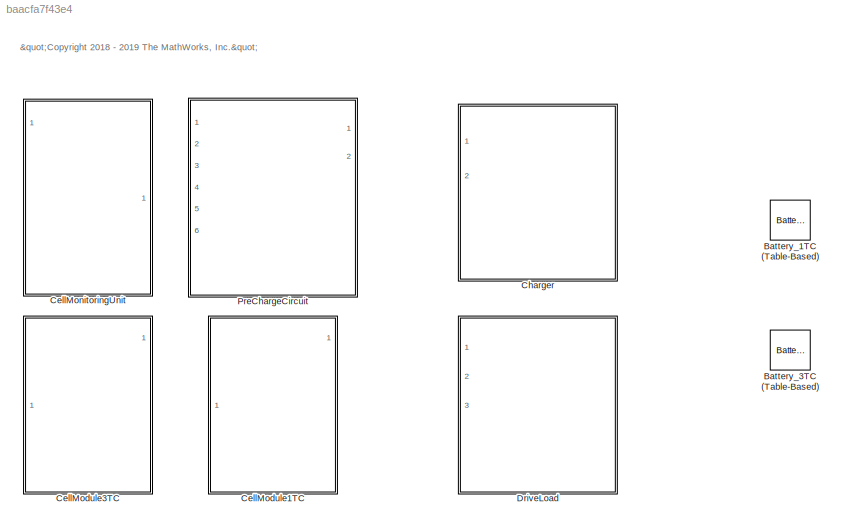
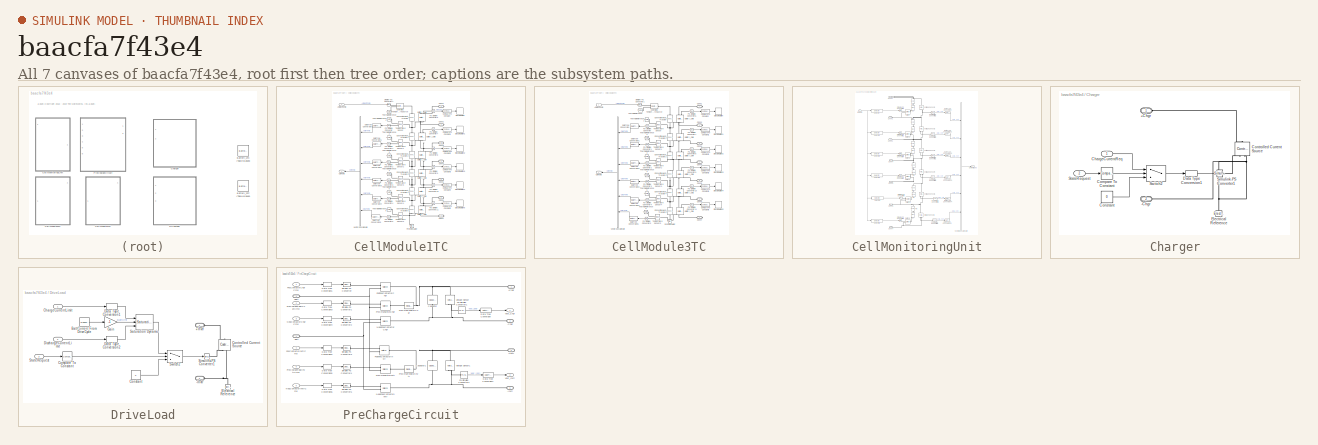
[diagram: thumbnail index - all 7 canvases of the model, root first then tree order]
MODEL slx_baacfa7f43e4
KIND library
CONFIG AbsTol = auto
CONFIG EnableMultiTasking = off
CONFIG FixedStep = auto
CONFIG MaxStep = auto
CONFIG MinStep = auto
CONFIG RelTol = 1e-3
CONFIG SampleTimeConstraint = Unconstrained
CONFIG SolverName = VariableStepAuto
CONFIG StartTime = 0.0
CONFIG StopTime = 10.0
BLOCK [Reference] Battery_1TC (Table-Based)  REF=ee_lib/Sources/Battery
(Table-Based)
  NameLocation = right
  Ports = [0, 0, 0, 0, 0, 2, 2]
  SourceBlock = ee_lib/Sources/Battery\n(Table-Based)
  SourceProductBaseCode = PS
  SourceType = Battery\n(Table-Based)
BLOCK [Reference] Battery_3TC (Table-Based)  REF=ee_lib/Sources/Battery
(Table-Based)
  NameLocation = right
  Ports = [0, 0, 0, 0, 0, 2, 2]
  SourceBlock = ee_lib/Sources/Battery\n(Table-Based)
  SourceProductBaseCode = PS
  SourceType = Battery\n(Table-Based)
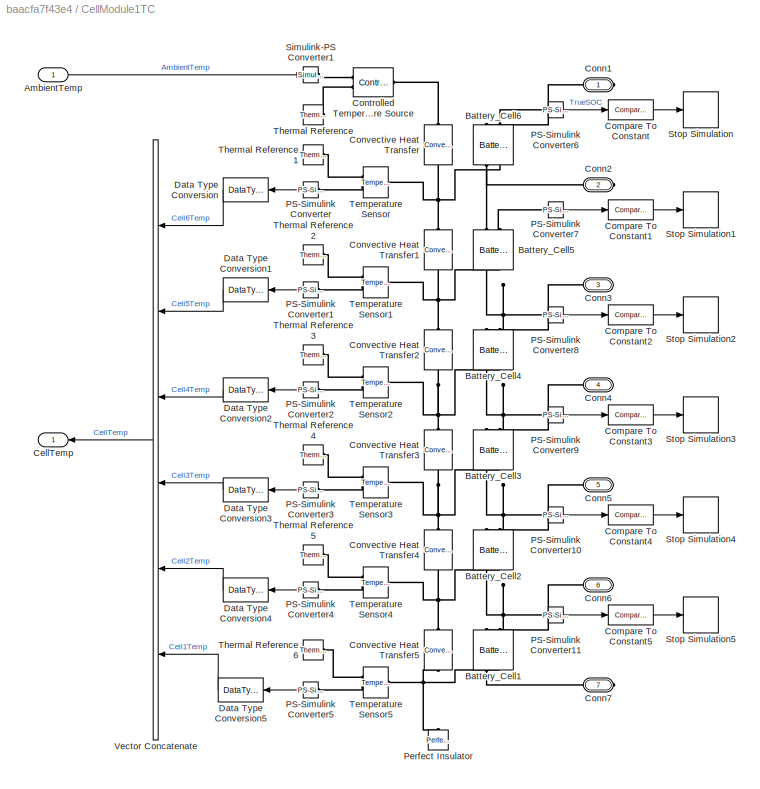
BLOCK [SubSystem] CellModule1TC
  Ports = [1, 1, 0, 0, 0, 0, 7]
  RequestExecContextInheritance = off
BLOCK [Inport] CellModule1TC/AmbientTemp
BLOCK [Reference] CellModule1TC/Battery_Cell1  REF=ee_lib/Sources/Battery
(Table-Based)
  NameLocation = left
  Ports = [0, 0, 0, 0, 0, 2, 2]
  SourceBlock = ee_lib/Sources/Battery\n(Table-Based)
  SourceProductBaseCode = PS
  SourceType = Battery\n(Table-Based)
BLOCK [Reference] CellModule1TC/Battery_Cell2  REF=ee_lib/Sources/Battery
(Table-Based)
  NameLocation = left
  Ports = [0, 0, 0, 0, 0, 2, 2]
  SourceBlock = ee_lib/Sources/Battery\n(Table-Based)
  SourceProductBaseCode = PS
  SourceType = Battery\n(Table-Based)
BLOCK [Reference] CellModule1TC/Battery_Cell3  REF=ee_lib/Sources/Battery
(Table-Based)
  NameLocation = left
  Ports = [0, 0, 0, 0, 0, 2, 2]
  SourceBlock = ee_lib/Sources/Battery\n(Table-Based)
  SourceProductBaseCode = PS
  SourceType = Battery\n(Table-Based)
BLOCK [Reference] CellModule1TC/Battery_Cell4  REF=ee_lib/Sources/Battery
(Table-Based)
  NameLocation = left
  Ports = [0, 0, 0, 0, 0, 2, 2]
  SourceBlock = ee_lib/Sources/Battery\n(Table-Based)
  SourceProductBaseCode = PS
  SourceType = Battery\n(Table-Based)
BLOCK [Reference] CellModule1TC/Battery_Cell5  REF=ee_lib/Sources/Battery
(Table-Based)
  NameLocation = left
  Ports = [0, 0, 0, 0, 0, 2, 2]
  SourceBlock = ee_lib/Sources/Battery\n(Table-Based)
  SourceProductBaseCode = PS
  SourceType = Battery\n(Table-Based)
BLOCK [Reference] CellModule1TC/Battery_Cell6  REF=ee_lib/Sources/Battery
(Table-Based)
  NameLocation = left
  Ports = [0, 0, 0, 0, 0, 2, 2]
  SourceBlock = ee_lib/Sources/Battery\n(Table-Based)
  SourceProductBaseCode = PS
  SourceType = Battery\n(Table-Based)
BLOCK [Outport] CellModule1TC/CellTemp
  VectorParamsAs1DForOutWhenUnconnected = off
BLOCK [Reference] CellModule1TC/Compare To Constant  REF=simulink/Logic and Bit
Operations/Compare
To Constant
  Ports = [1, 1]
  SourceBlock = simulink/Logic and Bit\nOperations/Compare\nTo Constant
  SourceProductBaseCode = SL
  SourceType = Compare To Constant
BLOCK [Reference] CellModule1TC/Compare To Constant1  REF=simulink/Logic and Bit
Operations/Compare
To Constant
  Ports = [1, 1]
  SourceBlock = simulink/Logic and Bit\nOperations/Compare\nTo Constant
  SourceProductBaseCode = SL
  SourceType = Compare To Constant
BLOCK [Reference] CellModule1TC/Compare To Constant2  REF=simulink/Logic and Bit
Operations/Compare
To Constant
  Ports = [1, 1]
  SourceBlock = simulink/Logic and Bit\nOperations/Compare\nTo Constant
  SourceProductBaseCode = SL
  SourceType = Compare To Constant
BLOCK [Reference] CellModule1TC/Compare To Constant3  REF=simulink/Logic and Bit
Operations/Compare
To Constant
  Ports = [1, 1]
  SourceBlock = simulink/Logic and Bit\nOperations/Compare\nTo Constant
  SourceProductBaseCode = SL
  SourceType = Compare To Constant
BLOCK [Reference] CellModule1TC/Compare To Constant4  REF=simulink/Logic and Bit
Operations/Compare
To Constant
  Ports = [1, 1]
  SourceBlock = simulink/Logic and Bit\nOperations/Compare\nTo Constant
  SourceProductBaseCode = SL
  SourceType = Compare To Constant
BLOCK [Reference] CellModule1TC/Compare To Constant5  REF=simulink/Logic and Bit
Operations/Compare
To Constant
  Ports = [1, 1]
  SourceBlock = simulink/Logic and Bit\nOperations/Compare\nTo Constant
  SourceProductBaseCode = SL
  SourceType = Compare To Constant
BLOCK [PMIOPort] CellModule1TC/Conn1
  NameLocation = top
  Side = Right
BLOCK [PMIOPort] CellModule1TC/Conn2
  NameLocation = top
  Port = 2
  Side = Right
BLOCK [PMIOPort] CellModule1TC/Conn3
  NameLocation = top
  Port = 3
  Side = Right
BLOCK [PMIOPort] CellModule1TC/Conn4
  NameLocation = top
  Port = 4
  Side = Right
BLOCK [PMIOPort] CellModule1TC/Conn5
  NameLocation = top
  Port = 5
  Side = Right
BLOCK [PMIOPort] CellModule1TC/Conn6
  NameLocation = top
  Port = 6
  Side = Right
BLOCK [PMIOPort] CellModule1TC/Conn7
  NameLocation = top
  Port = 7
  Side = Right
BLOCK [Reference] CellModule1TC/Controlled Temperature Source  REF=fl_lib/Thermal/Thermal Sources/Controlled
Temperature Source
  Ports = [0, 0, 0, 0, 0, 1, 2]
  SourceBlock = fl_lib/Thermal/Thermal Sources/Controlled\nTemperature Source
  SourceProductBaseCode = SS
  SourceType = Controlled\nTemperature Source
BLOCK [Reference] CellModule1TC/Convective Heat Transfer  REF=fl_lib/Thermal/Thermal Elements/Convective Heat
Transfer
  NameLocation = left
  Ports = [0, 0, 0, 0, 0, 1, 1]
  SourceBlock = fl_lib/Thermal/Thermal Elements/Convective Heat\nTransfer
  SourceProductBaseCode = SS
  SourceType = Convective Heat\nTransfer
BLOCK [Reference] CellModule1TC/Convective Heat Transfer1  REF=fl_lib/Thermal/Thermal Elements/Convective Heat
Transfer
  NameLocation = left
  Ports = [0, 0, 0, 0, 0, 1, 1]
  SourceBlock = fl_lib/Thermal/Thermal Elements/Convective Heat\nTransfer
  SourceProductBaseCode = SS
  SourceType = Convective Heat\nTransfer
BLOCK [Reference] CellModule1TC/Convective Heat Transfer2  REF=fl_lib/Thermal/Thermal Elements/Convective Heat
Transfer
  NameLocation = left
  Ports = [0, 0, 0, 0, 0, 1, 1]
  SourceBlock = fl_lib/Thermal/Thermal Elements/Convective Heat\nTransfer
  SourceProductBaseCode = SS
  SourceType = Convective Heat\nTransfer
BLOCK [Reference] CellModule1TC/Convective Heat Transfer3  REF=fl_lib/Thermal/Thermal Elements/Convective Heat
Transfer
  NameLocation = left
  Ports = [0, 0, 0, 0, 0, 1, 1]
  SourceBlock = fl_lib/Thermal/Thermal Elements/Convective Heat\nTransfer
  SourceProductBaseCode = SS
  SourceType = Convective Heat\nTransfer
BLOCK [Reference] CellModule1TC/Convective Heat Transfer4  REF=fl_lib/Thermal/Thermal Elements/Convective Heat
Transfer
  NameLocation = left
  Ports = [0, 0, 0, 0, 0, 1, 1]
  SourceBlock = fl_lib/Thermal/Thermal Elements/Convective Heat\nTransfer
  SourceProductBaseCode = SS
  SourceType = Convective Heat\nTransfer
BLOCK [Reference] CellModule1TC/Convective Heat Transfer5  REF=fl_lib/Thermal/Thermal Elements/Convective Heat
Transfer
  NameLocation = left
  Ports = [0, 0, 0, 0, 0, 1, 1]
  SourceBlock = fl_lib/Thermal/Thermal Elements/Convective Heat\nTransfer
  SourceProductBaseCode = SS
  SourceType = Convective Heat\nTransfer
BLOCK [DataTypeConversion] CellModule1TC/Data Type Conversion
  OutDataTypeStr = single
  RndMeth = Floor
  SaturateOnIntegerOverflow = off
BLOCK [DataTypeConversion] CellModule1TC/Data Type Conversion1
  OutDataTypeStr = single
  RndMeth = Floor
  SaturateOnIntegerOverflow = off
BLOCK [DataTypeConversion] CellModule1TC/Data Type Conversion2
  OutDataTypeStr = single
  RndMeth = Floor
  SaturateOnIntegerOverflow = off
BLOCK [DataTypeConversion] CellModule1TC/Data Type Conversion3
  OutDataTypeStr = single
  RndMeth = Floor
  SaturateOnIntegerOverflow = off
BLOCK [DataTypeConversion] CellModule1TC/Data Type Conversion4
  OutDataTypeStr = single
  RndMeth = Floor
  SaturateOnIntegerOverflow = off
BLOCK [DataTypeConversion] CellModule1TC/Data Type Conversion5
  OutDataTypeStr = single
  RndMeth = Floor
  SaturateOnIntegerOverflow = off
BLOCK [Reference] CellModule1TC/PS-Simulink Converter  REF=nesl_utility/PS-Simulink
Converter
  Ports = [0, 1, 0, 0, 0, 1]
  SourceBlock = nesl_utility/PS-Simulink\nConverter
  SourceProductBaseCode = SS
  SourceType = PS-Simulink\nConverter
BLOCK [Reference] CellModule1TC/PS-Simulink Converter1  REF=nesl_utility/PS-Simulink
Converter
  Ports = [0, 1, 0, 0, 0, 1]
  SourceBlock = nesl_utility/PS-Simulink\nConverter
  SourceProductBaseCode = SS
  SourceType = PS-Simulink\nConverter
BLOCK [Reference] CellModule1TC/PS-Simulink Converter10  REF=nesl_utility/PS-Simulink
Converter
  Ports = [0, 1, 0, 0, 0, 1]
  SourceBlock = nesl_utility/PS-Simulink\nConverter
  SourceProductBaseCode = SS
  SourceType = PS-Simulink\nConverter
BLOCK [Reference] CellModule1TC/PS-Simulink Converter11  REF=nesl_utility/PS-Simulink
Converter
  Ports = [0, 1, 0, 0, 0, 1]
  SourceBlock = nesl_utility/PS-Simulink\nConverter
  SourceProductBaseCode = SS
  SourceType = PS-Simulink\nConverter
BLOCK [Reference] CellModule1TC/PS-Simulink Converter2  REF=nesl_utility/PS-Simulink
Converter
  Ports = [0, 1, 0, 0, 0, 1]
  SourceBlock = nesl_utility/PS-Simulink\nConverter
  SourceProductBaseCode = SS
  SourceType = PS-Simulink\nConverter
BLOCK [Reference] CellModule1TC/PS-Simulink Converter3  REF=nesl_utility/PS-Simulink
Converter
  Ports = [0, 1, 0, 0, 0, 1]
  SourceBlock = nesl_utility/PS-Simulink\nConverter
  SourceProductBaseCode = SS
  SourceType = PS-Simulink\nConverter
BLOCK [Reference] CellModule1TC/PS-Simulink Converter4  REF=nesl_utility/PS-Simulink
Converter
  Ports = [0, 1, 0, 0, 0, 1]
  SourceBlock = nesl_utility/PS-Simulink\nConverter
  SourceProductBaseCode = SS
  SourceType = PS-Simulink\nConverter
BLOCK [Reference] CellModule1TC/PS-Simulink Converter5  REF=nesl_utility/PS-Simulink
Converter
  Ports = [0, 1, 0, 0, 0, 1]
  SourceBlock = nesl_utility/PS-Simulink\nConverter
  SourceProductBaseCode = SS
  SourceType = PS-Simulink\nConverter
BLOCK [Reference] CellModule1TC/PS-Simulink Converter6  REF=nesl_utility/PS-Simulink
Converter
  Ports = [0, 1, 0, 0, 0, 1]
  SourceBlock = nesl_utility/PS-Simulink\nConverter
  SourceProductBaseCode = SS
  SourceType = PS-Simulink\nConverter
BLOCK [Reference] CellModule1TC/PS-Simulink Converter7  REF=nesl_utility/PS-Simulink
Converter
  Ports = [0, 1, 0, 0, 0, 1]
  SourceBlock = nesl_utility/PS-Simulink\nConverter
  SourceProductBaseCode = SS
  SourceType = PS-Simulink\nConverter
BLOCK [Reference] CellModule1TC/PS-Simulink Converter8  REF=nesl_utility/PS-Simulink
Converter
  Ports = [0, 1, 0, 0, 0, 1]
  SourceBlock = nesl_utility/PS-Simulink\nConverter
  SourceProductBaseCode = SS
  SourceType = PS-Simulink\nConverter
BLOCK [Reference] CellModule1TC/PS-Simulink Converter9  REF=nesl_utility/PS-Simulink
Converter
  Ports = [0, 1, 0, 0, 0, 1]
  SourceBlock = nesl_utility/PS-Simulink\nConverter
  SourceProductBaseCode = SS
  SourceType = PS-Simulink\nConverter
BLOCK [Reference] CellModule1TC/Perfect Insulator  REF=fl_lib/Thermal/Thermal Elements/Perfect Insulator
  NameLocation = right
  Ports = [0, 0, 0, 0, 0, 1]
  SourceBlock = fl_lib/Thermal/Thermal Elements/Perfect Insulator
  SourceProductBaseCode = SS
  SourceType = Perfect Insulator
BLOCK [Reference] CellModule1TC/Simulink-PS Converter1  REF=nesl_utility/Simulink-PS
Converter
  Ports = [1, 0, 0, 0, 0, 0, 1]
  SourceBlock = nesl_utility/Simulink-PS\nConverter
  SourceProductBaseCode = SS
  SourceType = Simulink-PS\nConverter
BLOCK [Stop] CellModule1TC/Stop Simulation
BLOCK [Stop] CellModule1TC/Stop Simulation1
BLOCK [Stop] CellModule1TC/Stop Simulation2
BLOCK [Stop] CellModule1TC/Stop Simulation3
BLOCK [Stop] CellModule1TC/Stop Simulation4
BLOCK [Stop] CellModule1TC/Stop Simulation5
BLOCK [Reference] CellModule1TC/Temperature Sensor  REF=fl_lib/Thermal/Thermal Sensors/Temperature Sensor
  Ports = [0, 0, 0, 0, 0, 1, 2]
  SourceBlock = fl_lib/Thermal/Thermal Sensors/Temperature Sensor
  SourceProductBaseCode = SS
  SourceType = Temperature Sensor
BLOCK [Reference] CellModule1TC/Temperature Sensor1  REF=fl_lib/Thermal/Thermal Sensors/Temperature Sensor
  Ports = [0, 0, 0, 0, 0, 1, 2]
  SourceBlock = fl_lib/Thermal/Thermal Sensors/Temperature Sensor
  SourceProductBaseCode = SS
  SourceType = Temperature Sensor
BLOCK [Reference] CellModule1TC/Temperature Sensor2  REF=fl_lib/Thermal/Thermal Sensors/Temperature Sensor
  Ports = [0, 0, 0, 0, 0, 1, 2]
  SourceBlock = fl_lib/Thermal/Thermal Sensors/Temperature Sensor
  SourceProductBaseCode = SS
  SourceType = Temperature Sensor
BLOCK [Reference] CellModule1TC/Temperature Sensor3  REF=fl_lib/Thermal/Thermal Sensors/Temperature Sensor
  Ports = [0, 0, 0, 0, 0, 1, 2]
  SourceBlock = fl_lib/Thermal/Thermal Sensors/Temperature Sensor
  SourceProductBaseCode = SS
  SourceType = Temperature Sensor
BLOCK [Reference] CellModule1TC/Temperature Sensor4  REF=fl_lib/Thermal/Thermal Sensors/Temperature Sensor
  Ports = [0, 0, 0, 0, 0, 1, 2]
  SourceBlock = fl_lib/Thermal/Thermal Sensors/Temperature Sensor
  SourceProductBaseCode = SS
  SourceType = Temperature Sensor
BLOCK [Reference] CellModule1TC/Temperature Sensor5  REF=fl_lib/Thermal/Thermal Sensors/Temperature Sensor
  Ports = [0, 0, 0, 0, 0, 1, 2]
  SourceBlock = fl_lib/Thermal/Thermal Sensors/Temperature Sensor
  SourceProductBaseCode = SS
  SourceType = Temperature Sensor
BLOCK [Reference] CellModule1TC/Thermal Reference  REF=fl_lib/Thermal/Thermal Elements/Thermal Reference
  Ports = [0, 0, 0, 0, 0, 1]
  SourceBlock = fl_lib/Thermal/Thermal Elements/Thermal Reference
  SourceProductBaseCode = SS
  SourceType = Thermal Reference
BLOCK [Reference] CellModule1TC/Thermal Reference1  REF=fl_lib/Thermal/Thermal Elements/Thermal Reference
  Ports = [0, 0, 0, 0, 0, 1]
  SourceBlock = fl_lib/Thermal/Thermal Elements/Thermal Reference
  SourceProductBaseCode = SS
  SourceType = Thermal Reference
BLOCK [Reference] CellModule1TC/Thermal Reference2  REF=fl_lib/Thermal/Thermal Elements/Thermal Reference
  Ports = [0, 0, 0, 0, 0, 1]
  SourceBlock = fl_lib/Thermal/Thermal Elements/Thermal Reference
  SourceProductBaseCode = SS
  SourceType = Thermal Reference
BLOCK [Reference] CellModule1TC/Thermal Reference3  REF=fl_lib/Thermal/Thermal Elements/Thermal Reference
  Ports = [0, 0, 0, 0, 0, 1]
  SourceBlock = fl_lib/Thermal/Thermal Elements/Thermal Reference
  SourceProductBaseCode = SS
  SourceType = Thermal Reference
BLOCK [Reference] CellModule1TC/Thermal Reference4  REF=fl_lib/Thermal/Thermal Elements/Thermal Reference
  Ports = [0, 0, 0, 0, 0, 1]
  SourceBlock = fl_lib/Thermal/Thermal Elements/Thermal Reference
  SourceProductBaseCode = SS
  SourceType = Thermal Reference
BLOCK [Reference] CellModule1TC/Thermal Reference5  REF=fl_lib/Thermal/Thermal Elements/Thermal Reference
  Ports = [0, 0, 0, 0, 0, 1]
  SourceBlock = fl_lib/Thermal/Thermal Elements/Thermal Reference
  SourceProductBaseCode = SS
  SourceType = Thermal Reference
BLOCK [Reference] CellModule1TC/Thermal Reference6  REF=fl_lib/Thermal/Thermal Elements/Thermal Reference
  Ports = [0, 0, 0, 0, 0, 1]
  SourceBlock = fl_lib/Thermal/Thermal Elements/Thermal Reference
  SourceProductBaseCode = SS
  SourceType = Thermal Reference
BLOCK [Concatenate] CellModule1TC/Vector Concatenate
  NumInputs = 6
  Ports = [6, 1]
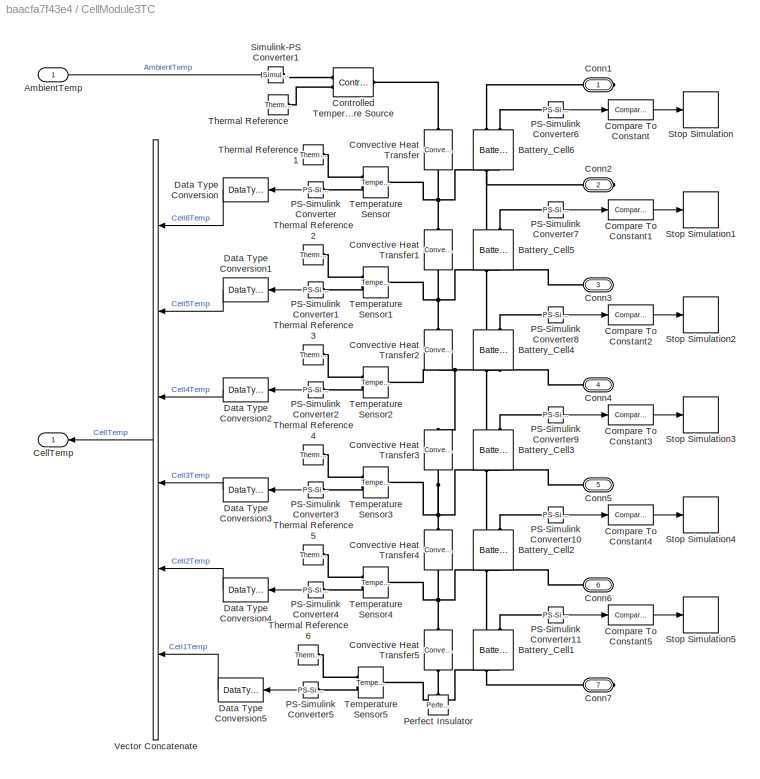
BLOCK [SubSystem] CellModule3TC
  Ports = [1, 1, 0, 0, 0, 0, 7]
  RequestExecContextInheritance = off
BLOCK [Inport] CellModule3TC/AmbientTemp
BLOCK [Reference] CellModule3TC/Battery_Cell1  REF=ee_lib/Sources/Battery
(Table-Based)
  NameLocation = right
  Ports = [0, 0, 0, 0, 0, 2, 2]
  SourceBlock = ee_lib/Sources/Battery\n(Table-Based)
  SourceProductBaseCode = PS
  SourceType = Battery\n(Table-Based)
BLOCK [Reference] CellModule3TC/Battery_Cell2  REF=ee_lib/Sources/Battery
(Table-Based)
  NameLocation = right
  Ports = [0, 0, 0, 0, 0, 2, 2]
  SourceBlock = ee_lib/Sources/Battery\n(Table-Based)
  SourceProductBaseCode = PS
  SourceType = Battery\n(Table-Based)
BLOCK [Reference] CellModule3TC/Battery_Cell3  REF=ee_lib/Sources/Battery
(Table-Based)
  NameLocation = right
  Ports = [0, 0, 0, 0, 0, 2, 2]
  SourceBlock = ee_lib/Sources/Battery\n(Table-Based)
  SourceProductBaseCode = PS
  SourceType = Battery\n(Table-Based)
BLOCK [Reference] CellModule3TC/Battery_Cell4  REF=ee_lib/Sources/Battery
(Table-Based)
  NameLocation = right
  Ports = [0, 0, 0, 0, 0, 2, 2]
  SourceBlock = ee_lib/Sources/Battery\n(Table-Based)
  SourceProductBaseCode = PS
  SourceType = Battery\n(Table-Based)
BLOCK [Reference] CellModule3TC/Battery_Cell5  REF=ee_lib/Sources/Battery
(Table-Based)
  NameLocation = right
  Ports = [0, 0, 0, 0, 0, 2, 2]
  SourceBlock = ee_lib/Sources/Battery\n(Table-Based)
  SourceProductBaseCode = PS
  SourceType = Battery\n(Table-Based)
BLOCK [Reference] CellModule3TC/Battery_Cell6  REF=ee_lib/Sources/Battery
(Table-Based)
  NameLocation = right
  Ports = [0, 0, 0, 0, 0, 2, 2]
  SourceBlock = ee_lib/Sources/Battery\n(Table-Based)
  SourceProductBaseCode = PS
  SourceType = Battery\n(Table-Based)
BLOCK [Outport] CellModule3TC/CellTemp
  VectorParamsAs1DForOutWhenUnconnected = off
BLOCK [Reference] CellModule3TC/Compare To Constant  REF=simulink/Logic and Bit
Operations/Compare
To Constant
  Ports = [1, 1]
  SourceBlock = simulink/Logic and Bit\nOperations/Compare\nTo Constant
  SourceProductBaseCode = SL
  SourceType = Compare To Constant
BLOCK [Reference] CellModule3TC/Compare To Constant1  REF=simulink/Logic and Bit
Operations/Compare
To Constant
  Ports = [1, 1]
  SourceBlock = simulink/Logic and Bit\nOperations/Compare\nTo Constant
  SourceProductBaseCode = SL
  SourceType = Compare To Constant
BLOCK [Reference] CellModule3TC/Compare To Constant2  REF=simulink/Logic and Bit
Operations/Compare
To Constant
  Ports = [1, 1]
  SourceBlock = simulink/Logic and Bit\nOperations/Compare\nTo Constant
  SourceProductBaseCode = SL
  SourceType = Compare To Constant
BLOCK [Reference] CellModule3TC/Compare To Constant3  REF=simulink/Logic and Bit
Operations/Compare
To Constant
  Ports = [1, 1]
  SourceBlock = simulink/Logic and Bit\nOperations/Compare\nTo Constant
  SourceProductBaseCode = SL
  SourceType = Compare To Constant
BLOCK [Reference] CellModule3TC/Compare To Constant4  REF=simulink/Logic and Bit
Operations/Compare
To Constant
  Ports = [1, 1]
  SourceBlock = simulink/Logic and Bit\nOperations/Compare\nTo Constant
  SourceProductBaseCode = SL
  SourceType = Compare To Constant
BLOCK [Reference] CellModule3TC/Compare To Constant5  REF=simulink/Logic and Bit
Operations/Compare
To Constant
  Ports = [1, 1]
  SourceBlock = simulink/Logic and Bit\nOperations/Compare\nTo Constant
  SourceProductBaseCode = SL
  SourceType = Compare To Constant
BLOCK [PMIOPort] CellModule3TC/Conn1
  NameLocation = top
  Side = Right
BLOCK [PMIOPort] CellModule3TC/Conn2
  NameLocation = top
  Port = 2
  Side = Right
BLOCK [PMIOPort] CellModule3TC/Conn3
  NameLocation = top
  Port = 3
  Side = Right
BLOCK [PMIOPort] CellModule3TC/Conn4
  NameLocation = top
  Port = 4
  Side = Right
BLOCK [PMIOPort] CellModule3TC/Conn5
  NameLocation = top
  Port = 5
  Side = Right
BLOCK [PMIOPort] CellModule3TC/Conn6
  NameLocation = top
  Port = 6
  Side = Right
BLOCK [PMIOPort] CellModule3TC/Conn7
  NameLocation = top
  Port = 7
  Side = Right
BLOCK [Reference] CellModule3TC/Controlled Temperature Source  REF=fl_lib/Thermal/Thermal Sources/Controlled
Temperature Source
  Ports = [0, 0, 0, 0, 0, 1, 2]
  SourceBlock = fl_lib/Thermal/Thermal Sources/Controlled\nTemperature Source
  SourceProductBaseCode = SS
  SourceType = Controlled\nTemperature Source
BLOCK [Reference] CellModule3TC/Convective Heat Transfer  REF=fl_lib/Thermal/Thermal Elements/Convective Heat
Transfer
  NameLocation = left
  Ports = [0, 0, 0, 0, 0, 1, 1]
  SourceBlock = fl_lib/Thermal/Thermal Elements/Convective Heat\nTransfer
  SourceProductBaseCode = SS
  SourceType = Convective Heat\nTransfer
BLOCK [Reference] CellModule3TC/Convective Heat Transfer1  REF=fl_lib/Thermal/Thermal Elements/Convective Heat
Transfer
  NameLocation = left
  Ports = [0, 0, 0, 0, 0, 1, 1]
  SourceBlock = fl_lib/Thermal/Thermal Elements/Convective Heat\nTransfer
  SourceProductBaseCode = SS
  SourceType = Convective Heat\nTransfer
BLOCK [Reference] CellModule3TC/Convective Heat Transfer2  REF=fl_lib/Thermal/Thermal Elements/Convective Heat
Transfer
  NameLocation = left
  Ports = [0, 0, 0, 0, 0, 1, 1]
  SourceBlock = fl_lib/Thermal/Thermal Elements/Convective Heat\nTransfer
  SourceProductBaseCode = SS
  SourceType = Convective Heat\nTransfer
BLOCK [Reference] CellModule3TC/Convective Heat Transfer3  REF=fl_lib/Thermal/Thermal Elements/Convective Heat
Transfer
  NameLocation = left
  Ports = [0, 0, 0, 0, 0, 1, 1]
  SourceBlock = fl_lib/Thermal/Thermal Elements/Convective Heat\nTransfer
  SourceProductBaseCode = SS
  SourceType = Convective Heat\nTransfer
BLOCK [Reference] CellModule3TC/Convective Heat Transfer4  REF=fl_lib/Thermal/Thermal Elements/Convective Heat
Transfer
  NameLocation = left
  Ports = [0, 0, 0, 0, 0, 1, 1]
  SourceBlock = fl_lib/Thermal/Thermal Elements/Convective Heat\nTransfer
  SourceProductBaseCode = SS
  SourceType = Convective Heat\nTransfer
BLOCK [Reference] CellModule3TC/Convective Heat Transfer5  REF=fl_lib/Thermal/Thermal Elements/Convective Heat
Transfer
  NameLocation = left
  Ports = [0, 0, 0, 0, 0, 1, 1]
  SourceBlock = fl_lib/Thermal/Thermal Elements/Convective Heat\nTransfer
  SourceProductBaseCode = SS
  SourceType = Convective Heat\nTransfer
BLOCK [DataTypeConversion] CellModule3TC/Data Type Conversion
  OutDataTypeStr = single
  RndMeth = Floor
  SaturateOnIntegerOverflow = off
BLOCK [DataTypeConversion] CellModule3TC/Data Type Conversion1
  OutDataTypeStr = single
  RndMeth = Floor
  SaturateOnIntegerOverflow = off
BLOCK [DataTypeConversion] CellModule3TC/Data Type Conversion2
  OutDataTypeStr = single
  RndMeth = Floor
  SaturateOnIntegerOverflow = off
BLOCK [DataTypeConversion] CellModule3TC/Data Type Conversion3
  OutDataTypeStr = single
  RndMeth = Floor
  SaturateOnIntegerOverflow = off
BLOCK [DataTypeConversion] CellModule3TC/Data Type Conversion4
  OutDataTypeStr = single
  RndMeth = Floor
  SaturateOnIntegerOverflow = off
BLOCK [DataTypeConversion] CellModule3TC/Data Type Conversion5
  OutDataTypeStr = single
  RndMeth = Floor
  SaturateOnIntegerOverflow = off
BLOCK [Reference] CellModule3TC/PS-Simulink Converter  REF=nesl_utility/PS-Simulink
Converter
  Ports = [0, 1, 0, 0, 0, 1]
  SourceBlock = nesl_utility/PS-Simulink\nConverter
  SourceProductBaseCode = SS
  SourceType = PS-Simulink\nConverter
BLOCK [Reference] CellModule3TC/PS-Simulink Converter1  REF=nesl_utility/PS-Simulink
Converter
  Ports = [0, 1, 0, 0, 0, 1]
  SourceBlock = nesl_utility/PS-Simulink\nConverter
  SourceProductBaseCode = SS
  SourceType = PS-Simulink\nConverter
BLOCK [Reference] CellModule3TC/PS-Simulink Converter10  REF=nesl_utility/PS-Simulink
Converter
  Ports = [0, 1, 0, 0, 0, 1]
  SourceBlock = nesl_utility/PS-Simulink\nConverter
  SourceProductBaseCode = SS
  SourceType = PS-Simulink\nConverter
BLOCK [Reference] CellModule3TC/PS-Simulink Converter11  REF=nesl_utility/PS-Simulink
Converter
  Ports = [0, 1, 0, 0, 0, 1]
  SourceBlock = nesl_utility/PS-Simulink\nConverter
  SourceProductBaseCode = SS
  SourceType = PS-Simulink\nConverter
BLOCK [Reference] CellModule3TC/PS-Simulink Converter2  REF=nesl_utility/PS-Simulink
Converter
  Ports = [0, 1, 0, 0, 0, 1]
  SourceBlock = nesl_utility/PS-Simulink\nConverter
  SourceProductBaseCode = SS
  SourceType = PS-Simulink\nConverter
BLOCK [Reference] CellModule3TC/PS-Simulink Converter3  REF=nesl_utility/PS-Simulink
Converter
  Ports = [0, 1, 0, 0, 0, 1]
  SourceBlock = nesl_utility/PS-Simulink\nConverter
  SourceProductBaseCode = SS
  SourceType = PS-Simulink\nConverter
BLOCK [Reference] CellModule3TC/PS-Simulink Converter4  REF=nesl_utility/PS-Simulink
Converter
  Ports = [0, 1, 0, 0, 0, 1]
  SourceBlock = nesl_utility/PS-Simulink\nConverter
  SourceProductBaseCode = SS
  SourceType = PS-Simulink\nConverter
BLOCK [Reference] CellModule3TC/PS-Simulink Converter5  REF=nesl_utility/PS-Simulink
Converter
  Ports = [0, 1, 0, 0, 0, 1]
  SourceBlock = nesl_utility/PS-Simulink\nConverter
  SourceProductBaseCode = SS
  SourceType = PS-Simulink\nConverter
BLOCK [Reference] CellModule3TC/PS-Simulink Converter6  REF=nesl_utility/PS-Simulink
Converter
  Ports = [0, 1, 0, 0, 0, 1]
  SourceBlock = nesl_utility/PS-Simulink\nConverter
  SourceProductBaseCode = SS
  SourceType = PS-Simulink\nConverter
BLOCK [Reference] CellModule3TC/PS-Simulink Converter7  REF=nesl_utility/PS-Simulink
Converter
  Ports = [0, 1, 0, 0, 0, 1]
  SourceBlock = nesl_utility/PS-Simulink\nConverter
  SourceProductBaseCode = SS
  SourceType = PS-Simulink\nConverter
BLOCK [Reference] CellModule3TC/PS-Simulink Converter8  REF=nesl_utility/PS-Simulink
Converter
  Ports = [0, 1, 0, 0, 0, 1]
  SourceBlock = nesl_utility/PS-Simulink\nConverter
  SourceProductBaseCode = SS
  SourceType = PS-Simulink\nConverter
BLOCK [Reference] CellModule3TC/PS-Simulink Converter9  REF=nesl_utility/PS-Simulink
Converter
  Ports = [0, 1, 0, 0, 0, 1]
  SourceBlock = nesl_utility/PS-Simulink\nConverter
  SourceProductBaseCode = SS
  SourceType = PS-Simulink\nConverter
BLOCK [Reference] CellModule3TC/Perfect Insulator  REF=fl_lib/Thermal/Thermal Elements/Perfect Insulator
  NameLocation = right
  Ports = [0, 0, 0, 0, 0, 1]
  SourceBlock = fl_lib/Thermal/Thermal Elements/Perfect Insulator
  SourceProductBaseCode = SS
  SourceType = Perfect Insulator
BLOCK [Reference] CellModule3TC/Simulink-PS Converter1  REF=nesl_utility/Simulink-PS
Converter
  Ports = [1, 0, 0, 0, 0, 0, 1]
  SourceBlock = nesl_utility/Simulink-PS\nConverter
  SourceProductBaseCode = SS
  SourceType = Simulink-PS\nConverter
BLOCK [Stop] CellModule3TC/Stop Simulation
BLOCK [Stop] CellModule3TC/Stop Simulation1
BLOCK [Stop] CellModule3TC/Stop Simulation2
BLOCK [Stop] CellModule3TC/Stop Simulation3
BLOCK [Stop] CellModule3TC/Stop Simulation4
BLOCK [Stop] CellModule3TC/Stop Simulation5
BLOCK [Reference] CellModule3TC/Temperature Sensor  REF=fl_lib/Thermal/Thermal Sensors/Temperature Sensor
  Ports = [0, 0, 0, 0, 0, 1, 2]
  SourceBlock = fl_lib/Thermal/Thermal Sensors/Temperature Sensor
  SourceProductBaseCode = SS
  SourceType = Temperature Sensor
BLOCK [Reference] CellModule3TC/Temperature Sensor1  REF=fl_lib/Thermal/Thermal Sensors/Temperature Sensor
  Ports = [0, 0, 0, 0, 0, 1, 2]
  SourceBlock = fl_lib/Thermal/Thermal Sensors/Temperature Sensor
  SourceProductBaseCode = SS
  SourceType = Temperature Sensor
BLOCK [Reference] CellModule3TC/Temperature Sensor2  REF=fl_lib/Thermal/Thermal Sensors/Temperature Sensor
  Ports = [0, 0, 0, 0, 0, 1, 2]
  SourceBlock = fl_lib/Thermal/Thermal Sensors/Temperature Sensor
  SourceProductBaseCode = SS
  SourceType = Temperature Sensor
BLOCK [Reference] CellModule3TC/Temperature Sensor3  REF=fl_lib/Thermal/Thermal Sensors/Temperature Sensor
  Ports = [0, 0, 0, 0, 0, 1, 2]
  SourceBlock = fl_lib/Thermal/Thermal Sensors/Temperature Sensor
  SourceProductBaseCode = SS
  SourceType = Temperature Sensor
BLOCK [Reference] CellModule3TC/Temperature Sensor4  REF=fl_lib/Thermal/Thermal Sensors/Temperature Sensor
  Ports = [0, 0, 0, 0, 0, 1, 2]
  SourceBlock = fl_lib/Thermal/Thermal Sensors/Temperature Sensor
  SourceProductBaseCode = SS
  SourceType = Temperature Sensor
BLOCK [Reference] CellModule3TC/Temperature Sensor5  REF=fl_lib/Thermal/Thermal Sensors/Temperature Sensor
  Ports = [0, 0, 0, 0, 0, 1, 2]
  SourceBlock = fl_lib/Thermal/Thermal Sensors/Temperature Sensor
  SourceProductBaseCode = SS
  SourceType = Temperature Sensor
BLOCK [Reference] CellModule3TC/Thermal Reference  REF=fl_lib/Thermal/Thermal Elements/Thermal Reference
  Ports = [0, 0, 0, 0, 0, 1]
  SourceBlock = fl_lib/Thermal/Thermal Elements/Thermal Reference
  SourceProductBaseCode = SS
  SourceType = Thermal Reference
BLOCK [Reference] CellModule3TC/Thermal Reference1  REF=fl_lib/Thermal/Thermal Elements/Thermal Reference
  Ports = [0, 0, 0, 0, 0, 1]
  SourceBlock = fl_lib/Thermal/Thermal Elements/Thermal Reference
  SourceProductBaseCode = SS
  SourceType = Thermal Reference
BLOCK [Reference] CellModule3TC/Thermal Reference2  REF=fl_lib/Thermal/Thermal Elements/Thermal Reference
  Ports = [0, 0, 0, 0, 0, 1]
  SourceBlock = fl_lib/Thermal/Thermal Elements/Thermal Reference
  SourceProductBaseCode = SS
  SourceType = Thermal Reference
BLOCK [Reference] CellModule3TC/Thermal Reference3  REF=fl_lib/Thermal/Thermal Elements/Thermal Reference
  Ports = [0, 0, 0, 0, 0, 1]
  SourceBlock = fl_lib/Thermal/Thermal Elements/Thermal Reference
  SourceProductBaseCode = SS
  SourceType = Thermal Reference
BLOCK [Reference] CellModule3TC/Thermal Reference4  REF=fl_lib/Thermal/Thermal Elements/Thermal Reference
  Ports = [0, 0, 0, 0, 0, 1]
  SourceBlock = fl_lib/Thermal/Thermal Elements/Thermal Reference
  SourceProductBaseCode = SS
  SourceType = Thermal Reference
BLOCK [Reference] CellModule3TC/Thermal Reference5  REF=fl_lib/Thermal/Thermal Elements/Thermal Reference
  Ports = [0, 0, 0, 0, 0, 1]
  SourceBlock = fl_lib/Thermal/Thermal Elements/Thermal Reference
  SourceProductBaseCode = SS
  SourceType = Thermal Reference
BLOCK [Reference] CellModule3TC/Thermal Reference6  REF=fl_lib/Thermal/Thermal Elements/Thermal Reference
  Ports = [0, 0, 0, 0, 0, 1]
  SourceBlock = fl_lib/Thermal/Thermal Elements/Thermal Reference
  SourceProductBaseCode = SS
  SourceType = Thermal Reference
BLOCK [Concatenate] CellModule3TC/Vector Concatenate
  NumInputs = 6
  Ports = [6, 1]
BLOCK [SubSystem] CellMonitoringUnit
  Ports = [1, 1, 0, 0, 0, 7]
  RequestExecContextInheritance = off
BLOCK [Inport] CellMonitoringUnit/BalCmd
BLOCK [Outport] CellMonitoringUnit/CellVoltages
  VectorParamsAs1DForOutWhenUnconnected = off
BLOCK [PMIOPort] CellMonitoringUnit/Conn1
  Side = Left
BLOCK [PMIOPort] CellMonitoringUnit/Conn2
  Port = 2
  Side = Left
BLOCK [PMIOPort] CellMonitoringUnit/Conn3
  Port = 3
  Side = Left
BLOCK [PMIOPort] CellMonitoringUnit/Conn4
  Port = 4
  Side = Left
BLOCK [PMIOPort] CellMonitoringUnit/Conn5
  Port = 5
  Side = Left
BLOCK [PMIOPort] CellMonitoringUnit/Conn6
  Port = 6
  Side = Left
BLOCK [PMIOPort] CellMonitoringUnit/Conn7
  Port = 7
  Side = Left
BLOCK [Reference] CellMonitoringUnit/D1  REF=fl_lib/Electrical/Electrical Elements/Diode
  NameLocation = left
  Ports = [0, 0, 0, 0, 0, 1, 1]
  SourceBlock = fl_lib/Electrical/Electrical Elements/Diode
  SourceProductBaseCode = SS
  SourceType = Diode
BLOCK [Reference] CellMonitoringUnit/D2  REF=fl_lib/Electrical/Electrical Elements/Diode
  NameLocation = left
  Ports = [0, 0, 0, 0, 0, 1, 1]
  SourceBlock = fl_lib/Electrical/Electrical Elements/Diode
  SourceProductBaseCode = SS
  SourceType = Diode
BLOCK [Reference] CellMonitoringUnit/D3  REF=fl_lib/Electrical/Electrical Elements/Diode
  NameLocation = left
  Ports = [0, 0, 0, 0, 0, 1, 1]
  SourceBlock = fl_lib/Electrical/Electrical Elements/Diode
  SourceProductBaseCode = SS
  SourceType = Diode
BLOCK [Reference] CellMonitoringUnit/D4  REF=fl_lib/Electrical/Electrical Elements/Diode
  NameLocation = left
  Ports = [0, 0, 0, 0, 0, 1, 1]
  SourceBlock = fl_lib/Electrical/Electrical Elements/Diode
  SourceProductBaseCode = SS
  SourceType = Diode
BLOCK [Reference] CellMonitoringUnit/D5  REF=fl_lib/Electrical/Electrical Elements/Diode
  NameLocation = left
  Ports = [0, 0, 0, 0, 0, 1, 1]
  SourceBlock = fl_lib/Electrical/Electrical Elements/Diode
  SourceProductBaseCode = SS
  SourceType = Diode
BLOCK [Reference] CellMonitoringUnit/D6  REF=fl_lib/Electrical/Electrical Elements/Diode
  NameLocation = left
  Ports = [0, 0, 0, 0, 0, 1, 1]
  SourceBlock = fl_lib/Electrical/Electrical Elements/Diode
  SourceProductBaseCode = SS
  SourceType = Diode
BLOCK [DataTypeConversion] CellMonitoringUnit/Data Type Conversion
  OutDataTypeStr = single
  RndMeth = Floor
  SaturateOnIntegerOverflow = off
BLOCK [DataTypeConversion] CellMonitoringUnit/Data Type Conversion1
  OutDataTypeStr = single
  RndMeth = Floor
  SaturateOnIntegerOverflow = off
BLOCK [DataTypeConversion] CellMonitoringUnit/Data Type Conversion2
  OutDataTypeStr = single
  RndMeth = Floor
  SaturateOnIntegerOverflow = off
BLOCK [DataTypeConversion] CellMonitoringUnit/Data Type Conversion3
  OutDataTypeStr = single
  RndMeth = Floor
  SaturateOnIntegerOverflow = off
BLOCK [DataTypeConversion] CellMonitoringUnit/Data Type Conversion4
  OutDataTypeStr = single
  RndMeth = Floor
  SaturateOnIntegerOverflow = off
BLOCK [DataTypeConversion] CellMonitoringUnit/Data Type Conversion5
  OutDataTypeStr = single
  RndMeth = Floor
  SaturateOnIntegerOverflow = off
BLOCK [Reference] CellMonitoringUnit/PS-Simulink Converter1  REF=nesl_utility/PS-Simulink
Converter
  Ports = [0, 1, 0, 0, 0, 1]
  SourceBlock = nesl_utility/PS-Simulink\nConverter
  SourceProductBaseCode = SS
  SourceType = PS-Simulink\nConverter
BLOCK [Reference] CellMonitoringUnit/PS-Simulink Converter2  REF=nesl_utility/PS-Simulink
Converter
  Ports = [0, 1, 0, 0, 0, 1]
  SourceBlock = nesl_utility/PS-Simulink\nConverter
  SourceProductBaseCode = SS
  SourceType = PS-Simulink\nConverter
BLOCK [Reference] CellMonitoringUnit/PS-Simulink Converter3  REF=nesl_utility/PS-Simulink
Converter
  Ports = [0, 1, 0, 0, 0, 1]
  SourceBlock = nesl_utility/PS-Simulink\nConverter
  SourceProductBaseCode = SS
  SourceType = PS-Simulink\nConverter
BLOCK [Reference] CellMonitoringUnit/PS-Simulink Converter4  REF=nesl_utility/PS-Simulink
Converter
  Ports = [0, 1, 0, 0, 0, 1]
  SourceBlock = nesl_utility/PS-Simulink\nConverter
  SourceProductBaseCode = SS
  SourceType = PS-Simulink\nConverter
BLOCK [Reference] CellMonitoringUnit/PS-Simulink Converter5  REF=nesl_utility/PS-Simulink
Converter
  Ports = [0, 1, 0, 0, 0, 1]
  SourceBlock = nesl_utility/PS-Simulink\nConverter
  SourceProductBaseCode = SS
  SourceType = PS-Simulink\nConverter
BLOCK [Reference] CellMonitoringUnit/PS-Simulink Converter6  REF=nesl_utility/PS-Simulink
Converter
  Ports = [0, 1, 0, 0, 0, 1]
  SourceBlock = nesl_utility/PS-Simulink\nConverter
  SourceProductBaseCode = SS
  SourceType = PS-Simulink\nConverter
BLOCK [Reference] CellMonitoringUnit/R1  REF=fl_lib/Electrical/Electrical Elements/Resistor
  NameLocation = left
  Ports = [0, 0, 0, 0, 0, 1, 1]
  SourceBlock = fl_lib/Electrical/Electrical Elements/Resistor
  SourceProductBaseCode = SS
  SourceType = Resistor
BLOCK [Reference] CellMonitoringUnit/R2  REF=fl_lib/Electrical/Electrical Elements/Resistor
  NameLocation = left
  Ports = [0, 0, 0, 0, 0, 1, 1]
  SourceBlock = fl_lib/Electrical/Electrical Elements/Resistor
  SourceProductBaseCode = SS
  SourceType = Resistor
BLOCK [Reference] CellMonitoringUnit/R3  REF=fl_lib/Electrical/Electrical Elements/Resistor
  NameLocation = left
  Ports = [0, 0, 0, 0, 0, 1, 1]
  SourceBlock = fl_lib/Electrical/Electrical Elements/Resistor
  SourceProductBaseCode = SS
  SourceType = Resistor
BLOCK [Reference] CellMonitoringUnit/R4  REF=fl_lib/Electrical/Electrical Elements/Resistor
  NameLocation = left
  Ports = [0, 0, 0, 0, 0, 1, 1]
  SourceBlock = fl_lib/Electrical/Electrical Elements/Resistor
  SourceProductBaseCode = SS
  SourceType = Resistor
BLOCK [Reference] CellMonitoringUnit/R5  REF=fl_lib/Electrical/Electrical Elements/Resistor
  NameLocation = left
  Ports = [0, 0, 0, 0, 0, 1, 1]
  SourceBlock = fl_lib/Electrical/Electrical Elements/Resistor
  SourceProductBaseCode = SS
  SourceType = Resistor
BLOCK [Reference] CellMonitoringUnit/R6  REF=fl_lib/Electrical/Electrical Elements/Resistor
  NameLocation = left
  Ports = [0, 0, 0, 0, 0, 1, 1]
  SourceBlock = fl_lib/Electrical/Electrical Elements/Resistor
  SourceProductBaseCode = SS
  SourceType = Resistor
BLOCK [Selector] CellMonitoringUnit/Selector
  IndexOptions = Index vector (dialog)
  Indices = 1
  OutputSizes = 1
  Ports = [1, 1]
BLOCK [Selector] CellMonitoringUnit/Selector1
  IndexOptions = Index vector (dialog)
  Indices = 2
  OutputSizes = 1
  Ports = [1, 1]
BLOCK [Selector] CellMonitoringUnit/Selector2
  IndexOptions = Index vector (dialog)
  Indices = 3
  OutputSizes = 1
  Ports = [1, 1]
BLOCK [Selector] CellMonitoringUnit/Selector3
  IndexOptions = Index vector (dialog)
  Indices = 4
  OutputSizes = 1
  Ports = [1, 1]
BLOCK [Selector] CellMonitoringUnit/Selector4
  IndexOptions = Index vector (dialog)
  Indices = 5
  OutputSizes = 1
  Ports = [1, 1]
BLOCK [Selector] CellMonitoringUnit/Selector5
  IndexOptions = Index vector (dialog)
  Indices = 6
  OutputSizes = 1
  Ports = [1, 1]
BLOCK [Reference] CellMonitoringUnit/Simulink-PS Converter1  REF=nesl_utility/Simulink-PS
Converter
  NameLocation = top
  Ports = [1, 0, 0, 0, 0, 0, 1]
  SourceBlock = nesl_utility/Simulink-PS\nConverter
  SourceProductBaseCode = SS
  SourceType = Simulink-PS\nConverter
BLOCK [Reference] CellMonitoringUnit/Simulink-PS Converter2  REF=nesl_utility/Simulink-PS
Converter
  NameLocation = top
  Ports = [1, 0, 0, 0, 0, 0, 1]
  SourceBlock = nesl_utility/Simulink-PS\nConverter
  SourceProductBaseCode = SS
  SourceType = Simulink-PS\nConverter
BLOCK [Reference] CellMonitoringUnit/Simulink-PS Converter3  REF=nesl_utility/Simulink-PS
Converter
  NameLocation = top
  Ports = [1, 0, 0, 0, 0, 0, 1]
  SourceBlock = nesl_utility/Simulink-PS\nConverter
  SourceProductBaseCode = SS
  SourceType = Simulink-PS\nConverter
BLOCK [Reference] CellMonitoringUnit/Simulink-PS Converter4  REF=nesl_utility/Simulink-PS
Converter
  NameLocation = top
  Ports = [1, 0, 0, 0, 0, 0, 1]
  SourceBlock = nesl_utility/Simulink-PS\nConverter
  SourceProductBaseCode = SS
  SourceType = Simulink-PS\nConverter
BLOCK [Reference] CellMonitoringUnit/Simulink-PS Converter5  REF=nesl_utility/Simulink-PS
Converter
  NameLocation = top
  Ports = [1, 0, 0, 0, 0, 0, 1]
  SourceBlock = nesl_utility/Simulink-PS\nConverter
  SourceProductBaseCode = SS
  SourceType = Simulink-PS\nConverter
BLOCK [Reference] CellMonitoringUnit/Simulink-PS Converter6  REF=nesl_utility/Simulink-PS
Converter
  NameLocation = top
  Ports = [1, 0, 0, 0, 0, 0, 1]
  SourceBlock = nesl_utility/Simulink-PS\nConverter
  SourceProductBaseCode = SS
  SourceType = Simulink-PS\nConverter
BLOCK [Reference] CellMonitoringUnit/Switch  REF=fl_lib/Electrical/Electrical Elements/Switch
  Ports = [0, 0, 0, 0, 0, 1, 2]
  SourceBlock = fl_lib/Electrical/Electrical Elements/Switch
  SourceProductBaseCode = SS
  SourceType = Switch
BLOCK [Reference] CellMonitoringUnit/Switch1  REF=fl_lib/Electrical/Electrical Elements/Switch
  Ports = [0, 0, 0, 0, 0, 1, 2]
  SourceBlock = fl_lib/Electrical/Electrical Elements/Switch
  SourceProductBaseCode = SS
  SourceType = Switch
BLOCK [Reference] CellMonitoringUnit/Switch2  REF=fl_lib/Electrical/Electrical Elements/Switch
  Ports = [0, 0, 0, 0, 0, 1, 2]
  SourceBlock = fl_lib/Electrical/Electrical Elements/Switch
  SourceProductBaseCode = SS
  SourceType = Switch
BLOCK [Reference] CellMonitoringUnit/Switch3  REF=fl_lib/Electrical/Electrical Elements/Switch
  Ports = [0, 0, 0, 0, 0, 1, 2]
  SourceBlock = fl_lib/Electrical/Electrical Elements/Switch
  SourceProductBaseCode = SS
  SourceType = Switch
BLOCK [Reference] CellMonitoringUnit/Switch4  REF=fl_lib/Electrical/Electrical Elements/Switch
  Ports = [0, 0, 0, 0, 0, 1, 2]
  SourceBlock = fl_lib/Electrical/Electrical Elements/Switch
  SourceProductBaseCode = SS
  SourceType = Switch
BLOCK [Reference] CellMonitoringUnit/Switch5  REF=fl_lib/Electrical/Electrical Elements/Switch
  Ports = [0, 0, 0, 0, 0, 1, 2]
  SourceBlock = fl_lib/Electrical/Electrical Elements/Switch
  SourceProductBaseCode = SS
  SourceType = Switch
BLOCK [Concatenate] CellMonitoringUnit/Vector Concatenate
  NumInputs = 6
  Ports = [6, 1]
BLOCK [Reference] CellMonitoringUnit/Voltage Sensor1  REF=fl_lib/Electrical/Electrical Sensors/Voltage Sensor
  NameLocation = right
  Ports = [0, 0, 0, 0, 0, 1, 2]
  SourceBlock = fl_lib/Electrical/Electrical Sensors/Voltage Sensor
  SourceProductBaseCode = SS
  SourceType = Voltage Sensor
BLOCK [Reference] CellMonitoringUnit/Voltage Sensor2  REF=fl_lib/Electrical/Electrical Sensors/Voltage Sensor
  NameLocation = right
  Ports = [0, 0, 0, 0, 0, 1, 2]
  SourceBlock = fl_lib/Electrical/Electrical Sensors/Voltage Sensor
  SourceProductBaseCode = SS
  SourceType = Voltage Sensor
BLOCK [Reference] CellMonitoringUnit/Voltage Sensor3  REF=fl_lib/Electrical/Electrical Sensors/Voltage Sensor
  NameLocation = right
  Ports = [0, 0, 0, 0, 0, 1, 2]
  SourceBlock = fl_lib/Electrical/Electrical Sensors/Voltage Sensor
  SourceProductBaseCode = SS
  SourceType = Voltage Sensor
BLOCK [Reference] CellMonitoringUnit/Voltage Sensor4  REF=fl_lib/Electrical/Electrical Sensors/Voltage Sensor
  NameLocation = right
  Ports = [0, 0, 0, 0, 0, 1, 2]
  SourceBlock = fl_lib/Electrical/Electrical Sensors/Voltage Sensor
  SourceProductBaseCode = SS
  SourceType = Voltage Sensor
BLOCK [Reference] CellMonitoringUnit/Voltage Sensor5  REF=fl_lib/Electrical/Electrical Sensors/Voltage Sensor
  NameLocation = right
  Ports = [0, 0, 0, 0, 0, 1, 2]
  SourceBlock = fl_lib/Electrical/Electrical Sensors/Voltage Sensor
  SourceProductBaseCode = SS
  SourceType = Voltage Sensor
BLOCK [Reference] CellMonitoringUnit/Voltage Sensor6  REF=fl_lib/Electrical/Electrical Sensors/Voltage Sensor
  NameLocation = right
  Ports = [0, 0, 0, 0, 0, 1, 2]
  SourceBlock = fl_lib/Electrical/Electrical Sensors/Voltage Sensor
  SourceProductBaseCode = SS
  SourceType = Voltage Sensor
BLOCK [SubSystem] Charger
  Ports = [2, 0, 0, 0, 0, 2]
  RequestExecContextInheritance = off
BLOCK [PMIOPort] Charger/+Chgr
  Side = Left
BLOCK [PMIOPort] Charger/-Chgr
  Port = 2
  Side = Left
BLOCK [Inport] Charger/ChargeCurrentReq
BLOCK [Reference] Charger/Compare To Constant  REF=simulink/Logic and Bit
Operations/Compare
To Constant
  Ports = [1, 1]
  SourceBlock = simulink/Logic and Bit\nOperations/Compare\nTo Constant
  SourceProductBaseCode = SL
  SourceType = Compare To Constant
BLOCK [Constant] Charger/Constant
  SampleTime = ts
  Value = 0
BLOCK [Reference] Charger/Controlled Current Source  REF=fl_lib/Electrical/Electrical Sources/Controlled Current
Source
  NameLocation = left
  Ports = [0, 0, 0, 0, 0, 1, 2]
  SourceBlock = fl_lib/Electrical/Electrical Sources/Controlled Current\nSource
  SourceProductBaseCode = SS
  SourceType = Controlled Current\nSource
BLOCK [DataTypeConversion] Charger/Data Type Conversion1
  RndMeth = Floor
  SaturateOnIntegerOverflow = off
BLOCK [Reference] Charger/Electrical Reference  REF=fl_lib/Electrical/Electrical Elements/Electrical Reference
  NameLocation = right
  Ports = [0, 0, 0, 0, 0, 1]
  SourceBlock = fl_lib/Electrical/Electrical Elements/Electrical Reference
  SourceProductBaseCode = SS
  SourceType = Electrical Reference
BLOCK [Reference] Charger/Simulink-PS Converter1  REF=nesl_utility/Simulink-PS
Converter
  Ports = [1, 0, 0, 0, 0, 0, 1]
  SourceBlock = nesl_utility/Simulink-PS\nConverter
  SourceProductBaseCode = SS
  SourceType = Simulink-PS\nConverter
BLOCK [Inport] Charger/StateRequest
  Port = 2
BLOCK [Switch] Charger/Switch2
  Criteria = u2 > Threshold
  InputSameDT = off
  SaturateOnIntegerOverflow = off
BLOCK [SubSystem] DriveLoad
  Ports = [3, 0, 0, 0, 0, 2]
  RequestExecContextInheritance = off
BLOCK [PMIOPort] DriveLoad/+Invtr
  Side = Left
BLOCK [PMIOPort] DriveLoad/-Invtr
  Port = 2
  Side = Left
BLOCK [Reference] DriveLoad/BattCurrent From DriveCycle  REF=simulink/Sources/Repeating
Sequence
  Ports = [0, 1]
  SourceBlock = simulink/Sources/Repeating\nSequence
  SourceProductBaseCode = SL
  SourceType = Repeating table
BLOCK [Inport] DriveLoad/ChargeCurrentLimit
BLOCK [Reference] DriveLoad/Compare To Constant  REF=simulink/Logic and Bit
Operations/Compare
To Constant
  Ports = [1, 1]
  SourceBlock = simulink/Logic and Bit\nOperations/Compare\nTo Constant
  SourceProductBaseCode = SL
  SourceType = Compare To Constant
BLOCK [Constant] DriveLoad/Constant
  SampleTime = ts
  Value = 0
BLOCK [Reference] DriveLoad/Controlled Current Source  REF=fl_lib/Electrical/Electrical Sources/Controlled Current
Source
  NameLocation = left
  Ports = [0, 0, 0, 0, 0, 1, 2]
  SourceBlock = fl_lib/Electrical/Electrical Sources/Controlled Current\nSource
  SourceProductBaseCode = SS
  SourceType = Controlled Current\nSource
BLOCK [DataTypeConversion] DriveLoad/Data Type Conversion1
  RndMeth = Floor
  SaturateOnIntegerOverflow = off
BLOCK [DataTypeConversion] DriveLoad/Data Type Conversion2
  RndMeth = Floor
  SaturateOnIntegerOverflow = off
BLOCK [Inport] DriveLoad/DischargeCurrentLimit
  Port = 2
BLOCK [Reference] DriveLoad/Electrical Reference  REF=fl_lib/Electrical/Electrical Elements/Electrical Reference
  NameLocation = right
  Ports = [0, 0, 0, 0, 0, 1]
  SourceBlock = fl_lib/Electrical/Electrical Elements/Electrical Reference
  SourceProductBaseCode = SS
  SourceType = Electrical Reference
BLOCK [Gain] DriveLoad/Gain
  Gain = -1
BLOCK [Reference] DriveLoad/Saturation Dynamic  REF=simulink/Discontinuities/Saturation
Dynamic
  Ports = [3, 1]
  SourceBlock = simulink/Discontinuities/Saturation\nDynamic
  SourceProductBaseCode = SL
  SourceType = Saturation Dynamic
BLOCK [Reference] DriveLoad/Simulink-PS Converter1  REF=nesl_utility/Simulink-PS
Converter
  Ports = [1, 0, 0, 0, 0, 0, 1]
  SourceBlock = nesl_utility/Simulink-PS\nConverter
  SourceProductBaseCode = SS
  SourceType = Simulink-PS\nConverter
BLOCK [Inport] DriveLoad/StateRequest
  Port = 3
BLOCK [Switch] DriveLoad/Switch2
  Criteria = u2 > Threshold
  InputSameDT = off
  SaturateOnIntegerOverflow = off
BLOCK [SubSystem] PreChargeCircuit
  Ports = [6, 2, 0, 0, 0, 2, 4]
  RequestExecContextInheritance = off
BLOCK [PMIOPort] PreChargeCircuit/+Batt
  Port = 3
  Side = Left
BLOCK [PMIOPort] PreChargeCircuit/+Chgr
  Side = Right
BLOCK [PMIOPort] PreChargeCircuit/+Invtr
  Port = 5
  Side = Right
BLOCK [PMIOPort] PreChargeCircuit/-Batt
  Port = 4
  Side = Left
BLOCK [PMIOPort] PreChargeCircuit/-Chgr
  Port = 2
  Side = Right
BLOCK [PMIOPort] PreChargeCircuit/-Invtr
  Port = 6
  Side = Right
BLOCK [Reference] PreChargeCircuit/Capacitor  REF=ee_lib/Passive/Capacitor
  NameLocation = left
  Ports = [0, 0, 0, 0, 0, 1, 1]
  SourceBlock = ee_lib/Passive/Capacitor
  SourceProductBaseCode = PS
  SourceType = Capacitor
BLOCK [Reference] PreChargeCircuit/Capacitor1  REF=ee_lib/Passive/Capacitor
  NameLocation = left
  Ports = [0, 0, 0, 0, 0, 1, 1]
  SourceBlock = ee_lib/Passive/Capacitor
  SourceProductBaseCode = PS
  SourceType = Capacitor
BLOCK [DataTypeConversion] PreChargeCircuit/Data Type Conversion
  OutDataTypeStr = single
  RndMeth = Floor
  SaturateOnIntegerOverflow = off
BLOCK [DataTypeConversion] PreChargeCircuit/Data Type Conversion1
  RndMeth = Floor
  SaturateOnIntegerOverflow = off
BLOCK [DataTypeConversion] PreChargeCircuit/Data Type Conversion2
  RndMeth = Floor
  SaturateOnIntegerOverflow = off
BLOCK [DataTypeConversion] PreChargeCircuit/Data Type Conversion3
  RndMeth = Floor
  SaturateOnIntegerOverflow = off
BLOCK [DataTypeConversion] PreChargeCircuit/Data Type Conversion4
  RndMeth = Floor
  SaturateOnIntegerOverflow = off
BLOCK [DataTypeConversion] PreChargeCircuit/Data Type Conversion5
  RndMeth = Floor
  SaturateOnIntegerOverflow = off
BLOCK [DataTypeConversion] PreChargeCircuit/Data Type Conversion6
  RndMeth = Floor
  SaturateOnIntegerOverflow = off
BLOCK [DataTypeConversion] PreChargeCircuit/Data Type Conversion7
  OutDataTypeStr = single
  RndMeth = Floor
  SaturateOnIntegerOverflow = off
BLOCK [Inport] PreChargeCircuit/NegContactorChgrCmd
  Port = 3
BLOCK [Inport] PreChargeCircuit/NegContactorInvtrCmd
  Port = 6
BLOCK [Reference] PreChargeCircuit/NegativeContactorChgr  REF=fl_lib/Electrical/Electrical Elements/Switch
  Ports = [0, 0, 0, 0, 0, 1, 2]
  SourceBlock = fl_lib/Electrical/Electrical Elements/Switch
  SourceProductBaseCode = SS
  SourceType = Switch
BLOCK [Reference] PreChargeCircuit/NegativeContactorInvtr  REF=fl_lib/Electrical/Electrical Elements/Switch
  Ports = [0, 0, 0, 0, 0, 1, 2]
  SourceBlock = fl_lib/Electrical/Electrical Elements/Switch
  SourceProductBaseCode = SS
  SourceType = Switch
BLOCK [Reference] PreChargeCircuit/PS-Simulink Converter1  REF=nesl_utility/PS-Simulink
Converter
  Ports = [0, 1, 0, 0, 0, 1]
  SourceBlock = nesl_utility/PS-Simulink\nConverter
  SourceProductBaseCode = SS
  SourceType = PS-Simulink\nConverter
BLOCK [Reference] PreChargeCircuit/PS-Simulink Converter2  REF=nesl_utility/PS-Simulink
Converter
  Ports = [0, 1, 0, 0, 0, 1]
  SourceBlock = nesl_utility/PS-Simulink\nConverter
  SourceProductBaseCode = SS
  SourceType = PS-Simulink\nConverter
BLOCK [Inport] PreChargeCircuit/PosContactorChgrCmd
BLOCK [Inport] PreChargeCircuit/PosContactorInvtrCmd
  Port = 4
BLOCK [Reference] PreChargeCircuit/PositiveContactorChgr  REF=fl_lib/Electrical/Electrical Elements/Switch
  Ports = [0, 0, 0, 0, 0, 1, 2]
  SourceBlock = fl_lib/Electrical/Electrical Elements/Switch
  SourceProductBaseCode = SS
  SourceType = Switch
BLOCK [Reference] PreChargeCircuit/PositiveContactorInvtr  REF=fl_lib/Electrical/Electrical Elements/Switch
  Ports = [0, 0, 0, 0, 0, 1, 2]
  SourceBlock = fl_lib/Electrical/Electrical Elements/Switch
  SourceProductBaseCode = SS
  SourceType = Switch
BLOCK [Inport] PreChargeCircuit/PreChargeRelayChgrCmd
  Port = 2
BLOCK [Inport] PreChargeCircuit/PreChargeRelayInvtrCmd
  Port = 5
BLOCK [Reference] PreChargeCircuit/PreChrgResistorChgr  REF=ee_lib/Passive/Resistor
  Ports = [0, 0, 0, 0, 0, 1, 1]
  SourceBlock = ee_lib/Passive/Resistor
  SourceProductBaseCode = PS
  SourceType = Resistor
BLOCK [Reference] PreChargeCircuit/PreChrgResistorInvtr  REF=ee_lib/Passive/Resistor
  Ports = [0, 0, 0, 0, 0, 1, 1]
  SourceBlock = ee_lib/Passive/Resistor
  SourceProductBaseCode = PS
  SourceType = Resistor
BLOCK [Reference] PreChargeCircuit/PreChrgSwitchChgr  REF=fl_lib/Electrical/Electrical Elements/Switch
  Ports = [0, 0, 0, 0, 0, 1, 2]
  SourceBlock = fl_lib/Electrical/Electrical Elements/Switch
  SourceProductBaseCode = SS
  SourceType = Switch
BLOCK [Reference] PreChargeCircuit/PreChrgSwitchInvtr  REF=fl_lib/Electrical/Electrical Elements/Switch
  Ports = [0, 0, 0, 0, 0, 1, 2]
  SourceBlock = fl_lib/Electrical/Electrical Elements/Switch
  SourceProductBaseCode = SS
  SourceType = Switch
BLOCK [Reference] PreChargeCircuit/Simulink-PS Converter  REF=nesl_utility/Simulink-PS
Converter
  Ports = [1, 0, 0, 0, 0, 0, 1]
  SourceBlock = nesl_utility/Simulink-PS\nConverter
  SourceProductBaseCode = SS
  SourceType = Simulink-PS\nConverter
BLOCK [Reference] PreChargeCircuit/Simulink-PS Converter1  REF=nesl_utility/Simulink-PS
Converter
  Ports = [1, 0, 0, 0, 0, 0, 1]
  SourceBlock = nesl_utility/Simulink-PS\nConverter
  SourceProductBaseCode = SS
  SourceType = Simulink-PS\nConverter
BLOCK [Reference] PreChargeCircuit/Simulink-PS Converter2  REF=nesl_utility/Simulink-PS
Converter
  Ports = [1, 0, 0, 0, 0, 0, 1]
  SourceBlock = nesl_utility/Simulink-PS\nConverter
  SourceProductBaseCode = SS
  SourceType = Simulink-PS\nConverter
BLOCK [Reference] PreChargeCircuit/Simulink-PS Converter3  REF=nesl_utility/Simulink-PS
Converter
  Ports = [1, 0, 0, 0, 0, 0, 1]
  SourceBlock = nesl_utility/Simulink-PS\nConverter
  SourceProductBaseCode = SS
  SourceType = Simulink-PS\nConverter
BLOCK [Reference] PreChargeCircuit/Simulink-PS Converter4  REF=nesl_utility/Simulink-PS
Converter
  Ports = [1, 0, 0, 0, 0, 0, 1]
  SourceBlock = nesl_utility/Simulink-PS\nConverter
  SourceProductBaseCode = SS
  SourceType = Simulink-PS\nConverter
BLOCK [Reference] PreChargeCircuit/Simulink-PS Converter5  REF=nesl_utility/Simulink-PS
Converter
  Ports = [1, 0, 0, 0, 0, 0, 1]
  SourceBlock = nesl_utility/Simulink-PS\nConverter
  SourceProductBaseCode = SS
  SourceType = Simulink-PS\nConverter
BLOCK [Reference] PreChargeCircuit/Voltage Sensor  REF=fl_lib/Electrical/Electrical Sensors/Voltage Sensor
  NameLocation = right
  Ports = [0, 0, 0, 0, 0, 1, 2]
  SourceBlock = fl_lib/Electrical/Electrical Sensors/Voltage Sensor
  SourceProductBaseCode = SS
  SourceType = Voltage Sensor
BLOCK [Reference] PreChargeCircuit/Voltage Sensor1  REF=fl_lib/Electrical/Electrical Sensors/Voltage Sensor
  NameLocation = right
  Ports = [0, 0, 0, 0, 0, 1, 2]
  SourceBlock = fl_lib/Electrical/Electrical Sensors/Voltage Sensor
  SourceProductBaseCode = SS
  SourceType = Voltage Sensor
BLOCK [Outport] PreChargeCircuit/Vout_Chgr
  VectorParamsAs1DForOutWhenUnconnected = off
BLOCK [Outport] PreChargeCircuit/Vout_Invtr
  Port = 2
  VectorParamsAs1DForOutWhenUnconnected = off
ANNOTATION (root): "<copyright redacted>
LINE CellModule1TC/AmbientTemp:1 -> CellModule1TC/Simulink-PS Converter1:1
LINE CellModule1TC/Compare To Constant1:1 -> CellModule1TC/Stop Simulation1:1
LINE CellModule1TC/Compare To Constant2:1 -> CellModule1TC/Stop Simulation2:1
LINE CellModule1TC/Compare To Constant3:1 -> CellModule1TC/Stop Simulation3:1
LINE CellModule1TC/Compare To Constant4:1 -> CellModule1TC/Stop Simulation4:1
LINE CellModule1TC/Compare To Constant5:1 -> CellModule1TC/Stop Simulation5:1
LINE CellModule1TC/Compare To Constant:1 -> CellModule1TC/Stop Simulation:1
LINE CellModule1TC/Data Type Conversion1:1 -> CellModule1TC/Vector Concatenate:2
LINE CellModule1TC/Data Type Conversion2:1 -> CellModule1TC/Vector Concatenate:3
LINE CellModule1TC/Data Type Conversion3:1 -> CellModule1TC/Vector Concatenate:4
LINE CellModule1TC/Data Type Conversion4:1 -> CellModule1TC/Vector Concatenate:5
LINE CellModule1TC/Data Type Conversion5:1 -> CellModule1TC/Vector Concatenate:6
LINE CellModule1TC/Data Type Conversion:1 -> CellModule1TC/Vector Concatenate:1
LINE CellModule1TC/PS-Simulink Converter10:1 -> CellModule1TC/Compare To Constant4:1
LINE CellModule1TC/PS-Simulink Converter11:1 -> CellModule1TC/Compare To Constant5:1
LINE CellModule1TC/PS-Simulink Converter1:1 -> CellModule1TC/Data Type Conversion1:1
LINE CellModule1TC/PS-Simulink Converter2:1 -> CellModule1TC/Data Type Conversion2:1
LINE CellModule1TC/PS-Simulink Converter3:1 -> CellModule1TC/Data Type Conversion3:1
LINE CellModule1TC/PS-Simulink Converter4:1 -> CellModule1TC/Data Type Conversion4:1
LINE CellModule1TC/PS-Simulink Converter5:1 -> CellModule1TC/Data Type Conversion5:1
LINE CellModule1TC/PS-Simulink Converter6:1 -> CellModule1TC/Compare To Constant:1
LINE CellModule1TC/PS-Simulink Converter7:1 -> CellModule1TC/Compare To Constant1:1
LINE CellModule1TC/PS-Simulink Converter8:1 -> CellModule1TC/Compare To Constant2:1
LINE CellModule1TC/PS-Simulink Converter9:1 -> CellModule1TC/Compare To Constant3:1
LINE CellModule1TC/PS-Simulink Converter:1 -> CellModule1TC/Data Type Conversion:1
LINE CellModule1TC/Vector Concatenate:1 -> CellModule1TC/CellTemp:1
LINE CellModule3TC/AmbientTemp:1 -> CellModule3TC/Simulink-PS Converter1:1
LINE CellModule3TC/Compare To Constant1:1 -> CellModule3TC/Stop Simulation1:1
LINE CellModule3TC/Compare To Constant2:1 -> CellModule3TC/Stop Simulation2:1
LINE CellModule3TC/Compare To Constant3:1 -> CellModule3TC/Stop Simulation3:1
LINE CellModule3TC/Compare To Constant4:1 -> CellModule3TC/Stop Simulation4:1
LINE CellModule3TC/Compare To Constant5:1 -> CellModule3TC/Stop Simulation5:1
LINE CellModule3TC/Compare To Constant:1 -> CellModule3TC/Stop Simulation:1
LINE CellModule3TC/Data Type Conversion1:1 -> CellModule3TC/Vector Concatenate:2
LINE CellModule3TC/Data Type Conversion2:1 -> CellModule3TC/Vector Concatenate:3
LINE CellModule3TC/Data Type Conversion3:1 -> CellModule3TC/Vector Concatenate:4
LINE CellModule3TC/Data Type Conversion4:1 -> CellModule3TC/Vector Concatenate:5
LINE CellModule3TC/Data Type Conversion5:1 -> CellModule3TC/Vector Concatenate:6
LINE CellModule3TC/Data Type Conversion:1 -> CellModule3TC/Vector Concatenate:1
LINE CellModule3TC/PS-Simulink Converter10:1 -> CellModule3TC/Compare To Constant4:1
LINE CellModule3TC/PS-Simulink Converter11:1 -> CellModule3TC/Compare To Constant5:1
LINE CellModule3TC/PS-Simulink Converter1:1 -> CellModule3TC/Data Type Conversion1:1
LINE CellModule3TC/PS-Simulink Converter2:1 -> CellModule3TC/Data Type Conversion2:1
LINE CellModule3TC/PS-Simulink Converter3:1 -> CellModule3TC/Data Type Conversion3:1
LINE CellModule3TC/PS-Simulink Converter4:1 -> CellModule3TC/Data Type Conversion4:1
LINE CellModule3TC/PS-Simulink Converter5:1 -> CellModule3TC/Data Type Conversion5:1
LINE CellModule3TC/PS-Simulink Converter6:1 -> CellModule3TC/Compare To Constant:1
LINE CellModule3TC/PS-Simulink Converter7:1 -> CellModule3TC/Compare To Constant1:1
LINE CellModule3TC/PS-Simulink Converter8:1 -> CellModule3TC/Compare To Constant2:1
LINE CellModule3TC/PS-Simulink Converter9:1 -> CellModule3TC/Compare To Constant3:1
LINE CellModule3TC/PS-Simulink Converter:1 -> CellModule3TC/Data Type Conversion:1
LINE CellModule3TC/Vector Concatenate:1 -> CellModule3TC/CellTemp:1
NET CellMonitoringUnit/BalCmd:1 -> CellMonitoringUnit/Selector1:1, CellMonitoringUnit/Selector2:1, CellMonitoringUnit/Selector3:1, CellMonitoringUnit/Selector4:1, CellMonitoringUnit/Selector5:1, CellMonitoringUnit/Selector:1
LINE CellMonitoringUnit/Data Type Conversion1:1 -> CellMonitoringUnit/Vector Concatenate:2
LINE CellMonitoringUnit/Data Type Conversion2:1 -> CellMonitoringUnit/Vector Concatenate:3
LINE CellMonitoringUnit/Data Type Conversion3:1 -> CellMonitoringUnit/Vector Concatenate:4
LINE CellMonitoringUnit/Data Type Conversion4:1 -> CellMonitoringUnit/Vector Concatenate:5
LINE CellMonitoringUnit/Data Type Conversion5:1 -> CellMonitoringUnit/Vector Concatenate:6
LINE CellMonitoringUnit/Data Type Conversion:1 -> CellMonitoringUnit/Vector Concatenate:1
LINE CellMonitoringUnit/PS-Simulink Converter1:1 -> CellMonitoringUnit/Data Type Conversion2:1
LINE CellMonitoringUnit/PS-Simulink Converter2:1 -> CellMonitoringUnit/Data Type Conversion:1
LINE CellMonitoringUnit/PS-Simulink Converter3:1 -> CellMonitoringUnit/Data Type Conversion3:1
LINE CellMonitoringUnit/PS-Simulink Converter4:1 -> CellMonitoringUnit/Data Type Conversion1:1
LINE CellMonitoringUnit/PS-Simulink Converter5:1 -> CellMonitoringUnit/Data Type Conversion4:1
LINE CellMonitoringUnit/PS-Simulink Converter6:1 -> CellMonitoringUnit/Data Type Conversion5:1
LINE CellMonitoringUnit/Selector1:1 -> CellMonitoringUnit/Simulink-PS Converter1:1
LINE CellMonitoringUnit/Selector2:1 -> CellMonitoringUnit/Simulink-PS Converter4:1
LINE CellMonitoringUnit/Selector3:1 -> CellMonitoringUnit/Simulink-PS Converter2:1
LINE CellMonitoringUnit/Selector4:1 -> CellMonitoringUnit/Simulink-PS Converter5:1
LINE CellMonitoringUnit/Selector5:1 -> CellMonitoringUnit/Simulink-PS Converter6:1
LINE CellMonitoringUnit/Selector:1 -> CellMonitoringUnit/Simulink-PS Converter3:1
LINE CellMonitoringUnit/Vector Concatenate:1 -> CellMonitoringUnit/CellVoltages:1
LINE Charger/ChargeCurrentReq:1 -> Charger/Switch2:1
LINE Charger/Compare To Constant:1 -> Charger/Switch2:2
LINE Charger/Constant:1 -> Charger/Switch2:3
LINE Charger/Data Type Conversion1:1 -> Charger/Simulink-PS Converter1:1
LINE Charger/StateRequest:1 -> Charger/Compare To Constant:1
LINE Charger/Switch2:1 -> Charger/Data Type Conversion1:1
LINE DriveLoad/BattCurrent From DriveCycle:1 -> DriveLoad/Gain:1
LINE DriveLoad/ChargeCurrentLimit:1 -> DriveLoad/Data Type Conversion1:1
LINE DriveLoad/Compare To Constant:1 -> DriveLoad/Switch2:2
LINE DriveLoad/Constant:1 -> DriveLoad/Switch2:3
LINE DriveLoad/Data Type Conversion1:1 -> DriveLoad/Saturation Dynamic:1
LINE DriveLoad/Data Type Conversion2:1 -> DriveLoad/Saturation Dynamic:3
LINE DriveLoad/DischargeCurrentLimit:1 -> DriveLoad/Data Type Conversion2:1
LINE DriveLoad/Gain:1 -> DriveLoad/Saturation Dynamic:2
LINE DriveLoad/Saturation Dynamic:1 -> DriveLoad/Switch2:1
LINE DriveLoad/StateRequest:1 -> DriveLoad/Compare To Constant:1
LINE DriveLoad/Switch2:1 -> DriveLoad/Simulink-PS Converter1:1
LINE PreChargeCircuit/Data Type Conversion1:1 -> PreChargeCircuit/Simulink-PS Converter:1
LINE PreChargeCircuit/Data Type Conversion2:1 -> PreChargeCircuit/Simulink-PS Converter3:1
LINE PreChargeCircuit/Data Type Conversion3:1 -> PreChargeCircuit/Simulink-PS Converter1:1
LINE PreChargeCircuit/Data Type Conversion4:1 -> PreChargeCircuit/Simulink-PS Converter2:1
LINE PreChargeCircuit/Data Type Conversion5:1 -> PreChargeCircuit/Simulink-PS Converter4:1
LINE PreChargeCircuit/Data Type Conversion6:1 -> PreChargeCircuit/Simulink-PS Converter5:1
LINE PreChargeCircuit/Data Type Conversion7:1 -> PreChargeCircuit/Vout_Invtr:1
LINE PreChargeCircuit/Data Type Conversion:1 -> PreChargeCircuit/Vout_Chgr:1
LINE PreChargeCircuit/NegContactorChgrCmd:1 -> PreChargeCircuit/Data Type Conversion4:1
LINE PreChargeCircuit/NegContactorInvtrCmd:1 -> PreChargeCircuit/Data Type Conversion6:1
LINE PreChargeCircuit/PS-Simulink Converter1:1 -> PreChargeCircuit/Data Type Conversion:1
LINE PreChargeCircuit/PS-Simulink Converter2:1 -> PreChargeCircuit/Data Type Conversion7:1
LINE PreChargeCircuit/PosContactorChgrCmd:1 -> PreChargeCircuit/Data Type Conversion1:1
LINE PreChargeCircuit/PosContactorInvtrCmd:1 -> PreChargeCircuit/Data Type Conversion2:1
LINE PreChargeCircuit/PreChargeRelayChgrCmd:1 -> PreChargeCircuit/Data Type Conversion3:1
LINE PreChargeCircuit/PreChargeRelayInvtrCmd:1 -> PreChargeCircuit/Data Type Conversion5:1
PNET net1: CellModule1TC/Battery_Cell1:LConn1 -- CellModule1TC/Battery_Cell2:RConn1 -- CellModule1TC/Conn6:RConn1
PLINE CellModule1TC/Battery_Cell1:LConn2 -- CellModule1TC/PS-Simulink Converter11:LConn1
PLINE CellModule1TC/Battery_Cell1:RConn1 -- CellModule1TC/Conn7:RConn1
PNET net2: CellModule1TC/Battery_Cell1:RConn2 -- CellModule1TC/Convective Heat Transfer5:RConn1 -- CellModule1TC/Perfect Insulator:LConn1 -- CellModule1TC/Temperature Sensor5:LConn1
PNET net3: CellModule1TC/Battery_Cell2:LConn1 -- CellModule1TC/Battery_Cell3:RConn1 -- CellModule1TC/Conn5:RConn1
PLINE CellModule1TC/Battery_Cell2:LConn2 -- CellModule1TC/PS-Simulink Converter10:LConn1
PNET net4: CellModule1TC/Battery_Cell2:RConn2 -- CellModule1TC/Convective Heat Transfer4:RConn1 -- CellModule1TC/Convective Heat Transfer5:LConn1 -- CellModule1TC/Temperature Sensor4:LConn1
PNET net5: CellModule1TC/Battery_Cell3:LConn1 -- CellModule1TC/Battery_Cell4:RConn1 -- CellModule1TC/Conn4:RConn1
PLINE CellModule1TC/Battery_Cell3:LConn2 -- CellModule1TC/PS-Simulink Converter9:LConn1
PNET net6: CellModule1TC/Battery_Cell3:RConn2 -- CellModule1TC/Convective Heat Transfer3:RConn1 -- CellModule1TC/Convective Heat Transfer4:LConn1 -- CellModule1TC/Temperature Sensor3:LConn1
PNET net7: CellModule1TC/Battery_Cell4:LConn1 -- CellModule1TC/Battery_Cell5:RConn1 -- CellModule1TC/Conn3:RConn1
PLINE CellModule1TC/Battery_Cell4:LConn2 -- CellModule1TC/PS-Simulink Converter8:LConn1
PNET net8: CellModule1TC/Battery_Cell4:RConn2 -- CellModule1TC/Convective Heat Transfer2:RConn1 -- CellModule1TC/Convective Heat Transfer3:LConn1 -- CellModule1TC/Temperature Sensor2:LConn1
PNET net9: CellModule1TC/Battery_Cell5:LConn1 -- CellModule1TC/Battery_Cell6:RConn1 -- CellModule1TC/Conn2:RConn1
PLINE CellModule1TC/Battery_Cell5:LConn2 -- CellModule1TC/PS-Simulink Converter7:LConn1
PNET net10: CellModule1TC/Battery_Cell5:RConn2 -- CellModule1TC/Convective Heat Transfer1:RConn1 -- CellModule1TC/Convective Heat Transfer2:LConn1 -- CellModule1TC/Temperature Sensor1:LConn1
PLINE CellModule1TC/Battery_Cell6:LConn1 -- CellModule1TC/Conn1:RConn1
PLINE CellModule1TC/Battery_Cell6:LConn2 -- CellModule1TC/PS-Simulink Converter6:LConn1
PNET net11: CellModule1TC/Battery_Cell6:RConn2 -- CellModule1TC/Convective Heat Transfer1:LConn1 -- CellModule1TC/Convective Heat Transfer:RConn1 -- CellModule1TC/Temperature Sensor:LConn1
PLINE CellModule1TC/Controlled Temperature Source:LConn1 -- CellModule1TC/Convective Heat Transfer:LConn1
PLINE CellModule1TC/Controlled Temperature Source:RConn1 -- CellModule1TC/Simulink-PS Converter1:RConn1
PLINE CellModule1TC/Controlled Temperature Source:RConn2 -- CellModule1TC/Thermal Reference:LConn1
PLINE CellModule1TC/PS-Simulink Converter1:LConn1 -- CellModule1TC/Temperature Sensor1:RConn2
PLINE CellModule1TC/PS-Simulink Converter2:LConn1 -- CellModule1TC/Temperature Sensor2:RConn2
PLINE CellModule1TC/PS-Simulink Converter3:LConn1 -- CellModule1TC/Temperature Sensor3:RConn2
PLINE CellModule1TC/PS-Simulink Converter4:LConn1 -- CellModule1TC/Temperature Sensor4:RConn2
PLINE CellModule1TC/PS-Simulink Converter5:LConn1 -- CellModule1TC/Temperature Sensor5:RConn2
PLINE CellModule1TC/PS-Simulink Converter:LConn1 -- CellModule1TC/Temperature Sensor:RConn2
PLINE CellModule1TC/Temperature Sensor1:RConn1 -- CellModule1TC/Thermal Reference2:LConn1
PLINE CellModule1TC/Temperature Sensor2:RConn1 -- CellModule1TC/Thermal Reference3:LConn1
PLINE CellModule1TC/Temperature Sensor3:RConn1 -- CellModule1TC/Thermal Reference4:LConn1
PLINE CellModule1TC/Temperature Sensor4:RConn1 -- CellModule1TC/Thermal Reference5:LConn1
PLINE CellModule1TC/Temperature Sensor5:RConn1 -- CellModule1TC/Thermal Reference6:LConn1
PLINE CellModule1TC/Temperature Sensor:RConn1 -- CellModule1TC/Thermal Reference1:LConn1
PNET net12: CellModule3TC/Battery_Cell1:LConn1 -- CellModule3TC/Battery_Cell2:RConn1 -- CellModule3TC/Conn6:RConn1
PLINE CellModule3TC/Battery_Cell1:LConn2 -- CellModule3TC/PS-Simulink Converter11:LConn1
PLINE CellModule3TC/Battery_Cell1:RConn1 -- CellModule3TC/Conn7:RConn1
PNET net13: CellModule3TC/Battery_Cell1:RConn2 -- CellModule3TC/Convective Heat Transfer5:RConn1 -- CellModule3TC/Perfect Insulator:LConn1 -- CellModule3TC/Temperature Sensor5:LConn1
PNET net14: CellModule3TC/Battery_Cell2:LConn1 -- CellModule3TC/Battery_Cell3:RConn1 -- CellModule3TC/Conn5:RConn1
PLINE CellModule3TC/Battery_Cell2:LConn2 -- CellModule3TC/PS-Simulink Converter10:LConn1
PNET net15: CellModule3TC/Battery_Cell2:RConn2 -- CellModule3TC/Convective Heat Transfer4:RConn1 -- CellModule3TC/Convective Heat Transfer5:LConn1 -- CellModule3TC/Temperature Sensor4:LConn1
PNET net16: CellModule3TC/Battery_Cell3:LConn1 -- CellModule3TC/Battery_Cell4:RConn1 -- CellModule3TC/Conn4:RConn1
PLINE CellModule3TC/Battery_Cell3:LConn2 -- CellModule3TC/PS-Simulink Converter9:LConn1
PNET net17: CellModule3TC/Battery_Cell3:RConn2 -- CellModule3TC/Convective Heat Transfer3:RConn1 -- CellModule3TC/Convective Heat Transfer4:LConn1 -- CellModule3TC/Temperature Sensor3:LConn1
PNET net18: CellModule3TC/Battery_Cell4:LConn1 -- CellModule3TC/Battery_Cell5:RConn1 -- CellModule3TC/Conn3:RConn1
PLINE CellModule3TC/Battery_Cell4:LConn2 -- CellModule3TC/PS-Simulink Converter8:LConn1
PNET net19: CellModule3TC/Battery_Cell4:RConn2 -- CellModule3TC/Convective Heat Transfer2:RConn1 -- CellModule3TC/Convective Heat Transfer3:LConn1 -- CellModule3TC/Temperature Sensor2:LConn1
PNET net20: CellModule3TC/Battery_Cell5:LConn1 -- CellModule3TC/Battery_Cell6:RConn1 -- CellModule3TC/Conn2:RConn1
PLINE CellModule3TC/Battery_Cell5:LConn2 -- CellModule3TC/PS-Simulink Converter7:LConn1
PNET net21: CellModule3TC/Battery_Cell5:RConn2 -- CellModule3TC/Convective Heat Transfer1:RConn1 -- CellModule3TC/Convective Heat Transfer2:LConn1 -- CellModule3TC/Temperature Sensor1:LConn1
PLINE CellModule3TC/Battery_Cell6:LConn1 -- CellModule3TC/Conn1:RConn1
PLINE CellModule3TC/Battery_Cell6:LConn2 -- CellModule3TC/PS-Simulink Converter6:LConn1
PNET net22: CellModule3TC/Battery_Cell6:RConn2 -- CellModule3TC/Convective Heat Transfer1:LConn1 -- CellModule3TC/Convective Heat Transfer:RConn1 -- CellModule3TC/Temperature Sensor:LConn1
PLINE CellModule3TC/Controlled Temperature Source:LConn1 -- CellModule3TC/Convective Heat Transfer:LConn1
PLINE CellModule3TC/Controlled Temperature Source:RConn1 -- CellModule3TC/Simulink-PS Converter1:RConn1
PLINE CellModule3TC/Controlled Temperature Source:RConn2 -- CellModule3TC/Thermal Reference:LConn1
PLINE CellModule3TC/PS-Simulink Converter1:LConn1 -- CellModule3TC/Temperature Sensor1:RConn2
PLINE CellModule3TC/PS-Simulink Converter2:LConn1 -- CellModule3TC/Temperature Sensor2:RConn2
PLINE CellModule3TC/PS-Simulink Converter3:LConn1 -- CellModule3TC/Temperature Sensor3:RConn2
PLINE CellModule3TC/PS-Simulink Converter4:LConn1 -- CellModule3TC/Temperature Sensor4:RConn2
PLINE CellModule3TC/PS-Simulink Converter5:LConn1 -- CellModule3TC/Temperature Sensor5:RConn2
PLINE CellModule3TC/PS-Simulink Converter:LConn1 -- CellModule3TC/Temperature Sensor:RConn2
PLINE CellModule3TC/Temperature Sensor1:RConn1 -- CellModule3TC/Thermal Reference2:LConn1
PLINE CellModule3TC/Temperature Sensor2:RConn1 -- CellModule3TC/Thermal Reference3:LConn1
PLINE CellModule3TC/Temperature Sensor3:RConn1 -- CellModule3TC/Thermal Reference4:LConn1
PLINE CellModule3TC/Temperature Sensor4:RConn1 -- CellModule3TC/Thermal Reference5:LConn1
PLINE CellModule3TC/Temperature Sensor5:RConn1 -- CellModule3TC/Thermal Reference6:LConn1
PLINE CellModule3TC/Temperature Sensor:RConn1 -- CellModule3TC/Thermal Reference1:LConn1
PNET net23: CellMonitoringUnit/Conn1:RConn1 -- CellMonitoringUnit/R1:LConn1 -- CellMonitoringUnit/Voltage Sensor1:LConn1
PNET net24: CellMonitoringUnit/Conn2:RConn1 -- CellMonitoringUnit/R2:LConn1 -- CellMonitoringUnit/Switch:RConn2 -- CellMonitoringUnit/Voltage Sensor1:RConn2 -- CellMonitoringUnit/Voltage Sensor2:LConn1
PNET net25: CellMonitoringUnit/Conn3:RConn1 -- CellMonitoringUnit/R3:LConn1 -- CellMonitoringUnit/Switch1:RConn2 -- CellMonitoringUnit/Voltage Sensor2:RConn2 -- CellMonitoringUnit/Voltage Sensor3:LConn1
PNET net26: CellMonitoringUnit/Conn4:RConn1 -- CellMonitoringUnit/R4:LConn1 -- CellMonitoringUnit/Switch2:RConn2 -- CellMonitoringUnit/Voltage Sensor3:RConn2 -- CellMonitoringUnit/Voltage Sensor4:LConn1
PNET net27: CellMonitoringUnit/Conn5:RConn1 -- CellMonitoringUnit/R5:LConn1 -- CellMonitoringUnit/Switch3:RConn2 -- CellMonitoringUnit/Voltage Sensor4:RConn2 -- CellMonitoringUnit/Voltage Sensor5:LConn1
PNET net28: CellMonitoringUnit/Conn6:RConn1 -- CellMonitoringUnit/R6:LConn1 -- CellMonitoringUnit/Switch4:RConn2 -- CellMonitoringUnit/Voltage Sensor5:RConn2 -- CellMonitoringUnit/Voltage Sensor6:LConn1
PNET net29: CellMonitoringUnit/Conn7:RConn1 -- CellMonitoringUnit/Switch5:RConn2 -- CellMonitoringUnit/Voltage Sensor6:RConn2
PLINE CellMonitoringUnit/D1:LConn1 -- CellMonitoringUnit/R1:RConn1
PLINE CellMonitoringUnit/D1:RConn1 -- CellMonitoringUnit/Switch:LConn1
PLINE CellMonitoringUnit/D2:LConn1 -- CellMonitoringUnit/R2:RConn1
PLINE CellMonitoringUnit/D2:RConn1 -- CellMonitoringUnit/Switch1:LConn1
PLINE CellMonitoringUnit/D3:LConn1 -- CellMonitoringUnit/R3:RConn1
PLINE CellMonitoringUnit/D3:RConn1 -- CellMonitoringUnit/Switch2:LConn1
PLINE CellMonitoringUnit/D4:LConn1 -- CellMonitoringUnit/R4:RConn1
PLINE CellMonitoringUnit/D4:RConn1 -- CellMonitoringUnit/Switch3:LConn1
PLINE CellMonitoringUnit/D5:LConn1 -- CellMonitoringUnit/R5:RConn1
PLINE CellMonitoringUnit/D5:RConn1 -- CellMonitoringUnit/Switch4:LConn1
PLINE CellMonitoringUnit/D6:LConn1 -- CellMonitoringUnit/R6:RConn1
PLINE CellMonitoringUnit/D6:RConn1 -- CellMonitoringUnit/Switch5:LConn1
PLINE CellMonitoringUnit/PS-Simulink Converter1:LConn1 -- CellMonitoringUnit/Voltage Sensor3:RConn1
PLINE CellMonitoringUnit/PS-Simulink Converter2:LConn1 -- CellMonitoringUnit/Voltage Sensor1:RConn1
PLINE CellMonitoringUnit/PS-Simulink Converter3:LConn1 -- CellMonitoringUnit/Voltage Sensor4:RConn1
PLINE CellMonitoringUnit/PS-Simulink Converter4:LConn1 -- CellMonitoringUnit/Voltage Sensor2:RConn1
PLINE CellMonitoringUnit/PS-Simulink Converter5:LConn1 -- CellMonitoringUnit/Voltage Sensor5:RConn1
PLINE CellMonitoringUnit/PS-Simulink Converter6:LConn1 -- CellMonitoringUnit/Voltage Sensor6:RConn1
PLINE CellMonitoringUnit/Simulink-PS Converter1:RConn1 -- CellMonitoringUnit/Switch1:RConn1
PLINE CellMonitoringUnit/Simulink-PS Converter2:RConn1 -- CellMonitoringUnit/Switch3:RConn1
PLINE CellMonitoringUnit/Simulink-PS Converter3:RConn1 -- CellMonitoringUnit/Switch:RConn1
PLINE CellMonitoringUnit/Simulink-PS Converter4:RConn1 -- CellMonitoringUnit/Switch2:RConn1
PLINE CellMonitoringUnit/Simulink-PS Converter5:RConn1 -- CellMonitoringUnit/Switch4:RConn1
PLINE CellMonitoringUnit/Simulink-PS Converter6:RConn1 -- CellMonitoringUnit/Switch5:RConn1
PLINE Charger/+Chgr:RConn1 -- Charger/Controlled Current Source:LConn1
PNET net30: Charger/-Chgr:RConn1 -- Charger/Controlled Current Source:RConn2 -- Charger/Electrical Reference:LConn1
PLINE Charger/Controlled Current Source:RConn1 -- Charger/Simulink-PS Converter1:RConn1
PLINE DriveLoad/+Invtr:RConn1 -- DriveLoad/Controlled Current Source:LConn1
PNET net31: DriveLoad/-Invtr:RConn1 -- DriveLoad/Controlled Current Source:RConn2 -- DriveLoad/Electrical Reference:LConn1
PLINE DriveLoad/Controlled Current Source:RConn1 -- DriveLoad/Simulink-PS Converter1:RConn1
PNET net32: PreChargeCircuit/+Batt:RConn1 -- PreChargeCircuit/PositiveContactorChgr:RConn2 -- PreChargeCircuit/PositiveContactorInvtr:RConn2 -- PreChargeCircuit/PreChrgSwitchChgr:RConn2 -- PreChargeCircuit/PreChrgSwitchInvtr:RConn2
PNET net33: PreChargeCircuit/+Chgr:RConn1 -- PreChargeCircuit/Capacitor:LConn1 -- PreChargeCircuit/PositiveContactorChgr:LConn1 -- PreChargeCircuit/PreChrgResistorChgr:RConn1 -- PreChargeCircuit/Voltage Sensor:LConn1
PNET net34: PreChargeCircuit/+Invtr:RConn1 -- PreChargeCircuit/Capacitor1:LConn1 -- PreChargeCircuit/PositiveContactorInvtr:LConn1 -- PreChargeCircuit/PreChrgResistorInvtr:RConn1 -- PreChargeCircuit/Voltage Sensor1:LConn1
PNET net35: PreChargeCircuit/-Batt:RConn1 -- PreChargeCircuit/NegativeContactorChgr:RConn2 -- PreChargeCircuit/NegativeContactorInvtr:RConn2
PNET net36: PreChargeCircuit/-Chgr:RConn1 -- PreChargeCircuit/Capacitor:RConn1 -- PreChargeCircuit/NegativeContactorChgr:LConn1 -- PreChargeCircuit/Voltage Sensor:RConn2
PNET net37: PreChargeCircuit/-Invtr:RConn1 -- PreChargeCircuit/Capacitor1:RConn1 -- PreChargeCircuit/NegativeContactorInvtr:LConn1 -- PreChargeCircuit/Voltage Sensor1:RConn2
PLINE PreChargeCircuit/NegativeContactorChgr:RConn1 -- PreChargeCircuit/Simulink-PS Converter2:RConn1
PLINE PreChargeCircuit/NegativeContactorInvtr:RConn1 -- PreChargeCircuit/Simulink-PS Converter5:RConn1
PLINE PreChargeCircuit/PS-Simulink Converter1:LConn1 -- PreChargeCircuit/Voltage Sensor:RConn1
PLINE PreChargeCircuit/PS-Simulink Converter2:LConn1 -- PreChargeCircuit/Voltage Sensor1:RConn1
PLINE PreChargeCircuit/PositiveContactorChgr:RConn1 -- PreChargeCircuit/Simulink-PS Converter:RConn1
PLINE PreChargeCircuit/PositiveContactorInvtr:RConn1 -- PreChargeCircuit/Simulink-PS Converter3:RConn1
PLINE PreChargeCircuit/PreChrgResistorChgr:LConn1 -- PreChargeCircuit/PreChrgSwitchChgr:LConn1
PLINE PreChargeCircuit/PreChrgResistorInvtr:LConn1 -- PreChargeCircuit/PreChrgSwitchInvtr:LConn1
PLINE PreChargeCircuit/PreChrgSwitchChgr:RConn1 -- PreChargeCircuit/Simulink-PS Converter1:RConn1
PLINE PreChargeCircuit/PreChrgSwitchInvtr:RConn1 -- PreChargeCircuit/Simulink-PS Converter4:RConn1
note: NET lines group one-source signal fan-out (src -> all destinations, sorted); 1:1 wires keep LINE; PNET lines group multi-terminal physical nets as a canonical sorted terminal list (undirected conserving connections); 2-terminal nets keep the pairwise PLINE form
